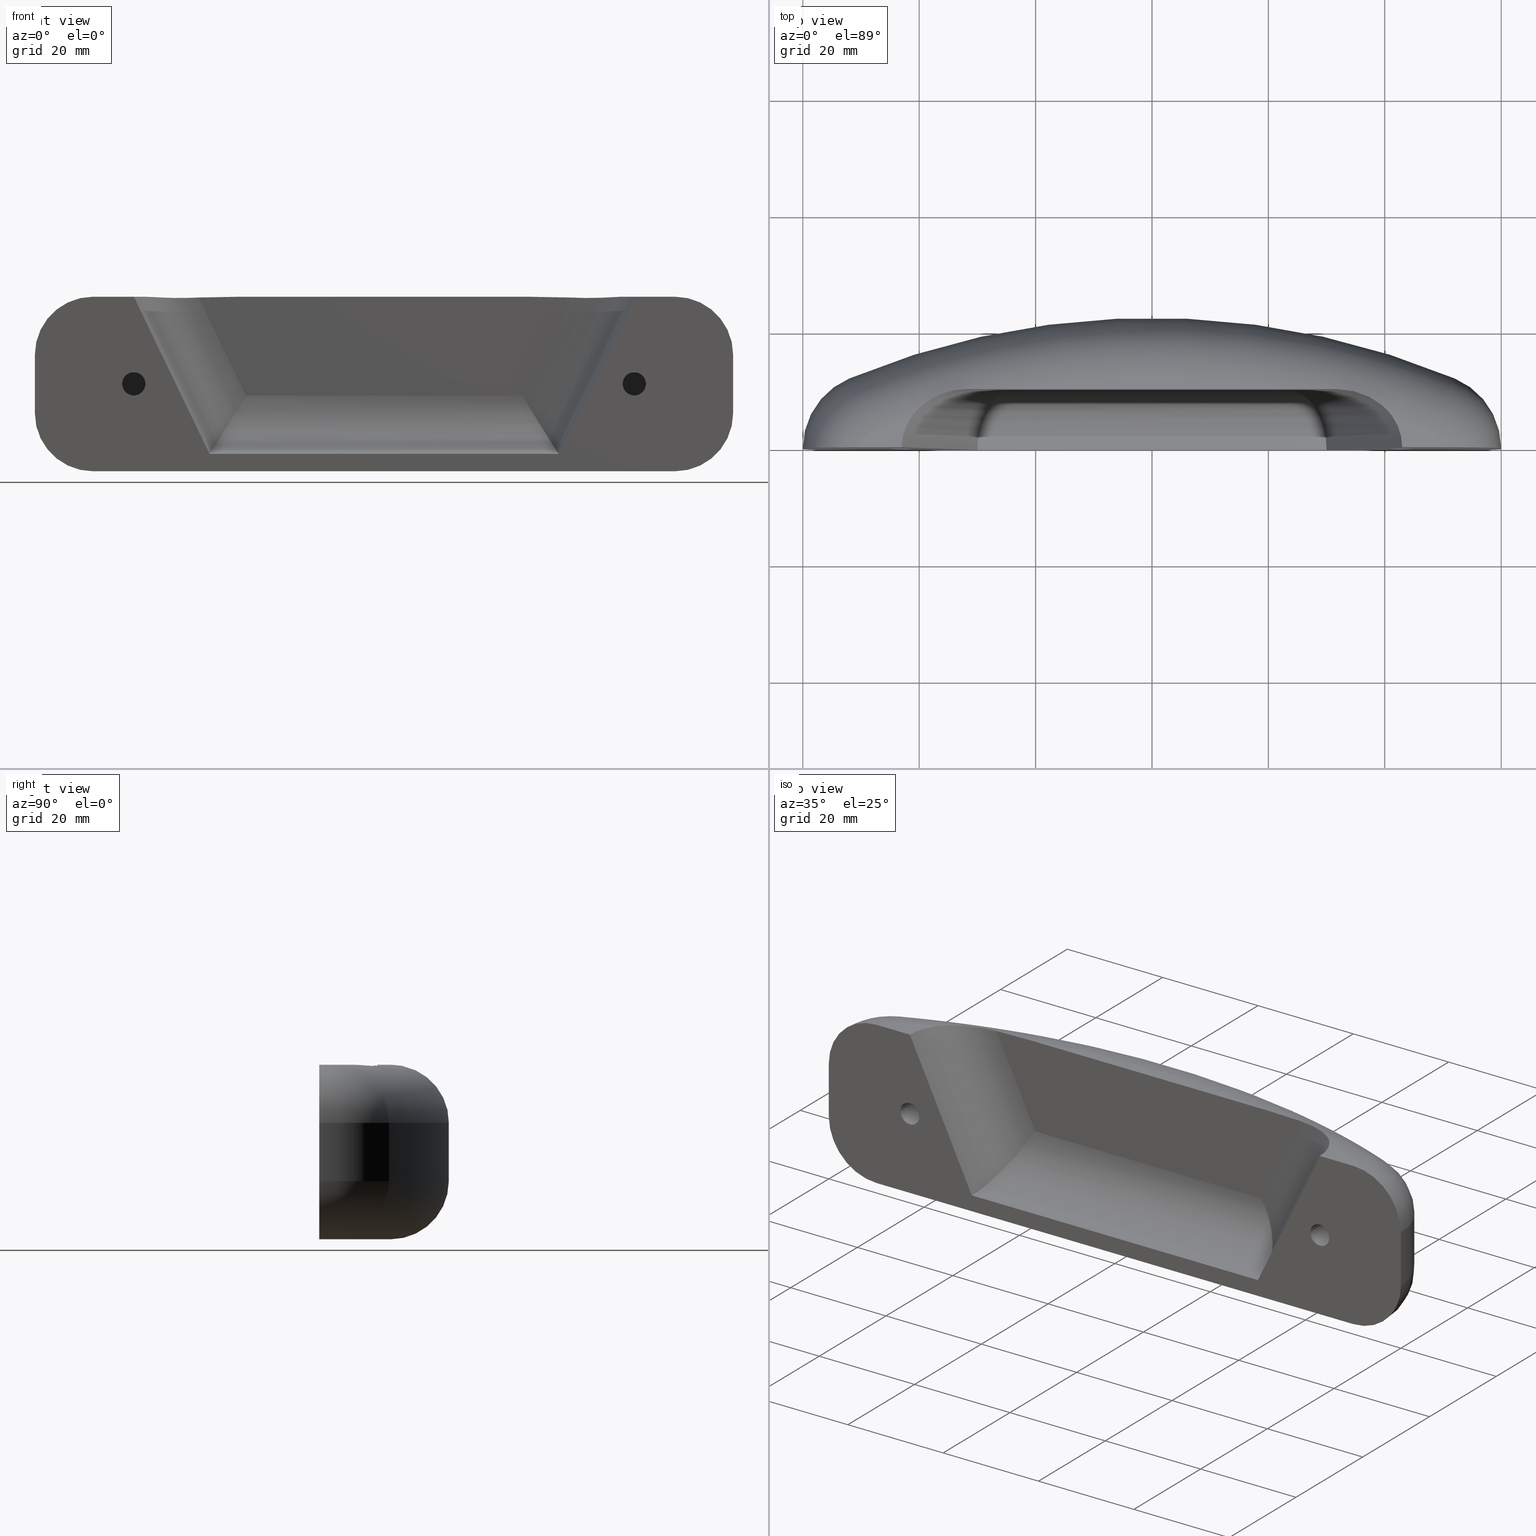
[diagram: canonical four-view strip — front | top / right | iso, engineering-drawing reading convention]
A machine part, canonical four-view strip (front | top / right | iso — engineering-drawing reading convention). The complete STEP part file that produces these views, byte-faithful:
ISO-10303-21;
HEADER;
FILE_DESCRIPTION (( 'STEP AP203' ),
    '1' );
FILE_NAME ('Puxador Modelo Eco.STEP',
    '2018-03-23T14:48:18',
    ( 'User2' ),
    ( '' ),
    'SwSTEP 2.0',
    'SolidWorks 2007',
    '' );
FILE_SCHEMA (( 'CONFIG_CONTROL_DESIGN' ));
ENDSEC;

DATA;
#1 = EDGE_CURVE ( 'NONE', #358, #377, #639, .T. ) ;
#2 = EDGE_CURVE ( 'NONE', #364, #355, #146, .T. ) ;
#3 = EDGE_CURVE ( 'NONE', #351, #361, #641, .T. ) ;
#4 = EDGE_CURVE ( 'NONE', #357, #353, #642, .T. ) ;
#5 = EDGE_CURVE ( 'NONE', #363, #351, #644, .T. ) ;
#6 = EDGE_CURVE ( 'NONE', #384, #375, #643, .T. ) ;
#7 = FACE_OUTER_BOUND ( 'NONE', #612, .T. ) ;
#8 = FACE_OUTER_BOUND ( 'NONE', #605, .T. ) ;
#9 = CYLINDRICAL_SURFACE ( 'NONE', #111, 2.000000000000001800 ) ;
#10 = FACE_OUTER_BOUND ( 'NONE', #609, .T. ) ;
#11 = CYLINDRICAL_SURFACE ( 'NONE', #86, 2.000000000000000000 ) ;
#12 = FACE_OUTER_BOUND ( 'NONE', #621, .T. ) ;
#13 = CYLINDRICAL_SURFACE ( 'NONE', #94, 13.00000000000001400 ) ;
#14 = FACE_OUTER_BOUND ( 'NONE', #616, .T. ) ;
#15 = FACE_OUTER_BOUND ( 'NONE', #620, .T. ) ;
#16 = CYLINDRICAL_SURFACE ( 'NONE', #138, 12.99999999999999800 ) ;
#17 = FACE_OUTER_BOUND ( 'NONE', #617, .T. ) ;
#18 = CYLINDRICAL_SURFACE ( 'NONE', #130, 135.2000000000006700 ) ;
#19 = FACE_OUTER_BOUND ( 'NONE', #614, .T. ) ;
#20 = CIRCLE ( 'NONE', #116, 125.2000000000006700 ) ;
#21 = LINE ( 'NONE', #206, #23 ) ;
#22 = CIRCLE ( 'NONE', #104, 125.2000000000006700 ) ;
#23 = VECTOR ( 'NONE', #207, 1000.000000000000000 ) ;
#24 = LINE ( 'NONE', #208, #25 ) ;
#25 = VECTOR ( 'NONE', #209, 1000.000000000000000 ) ;
#26 = LINE ( 'NONE', #210, #27 ) ;
#27 = VECTOR ( 'NONE', #211, 1000.000000000000000 ) ;
#28 = LINE ( 'NONE', #212, #29 ) ;
#29 = VECTOR ( 'NONE', #213, 1000.000000000000000 ) ;
#30 = LINE ( 'NONE', #214, #31 ) ;
#31 = VECTOR ( 'NONE', #215, 1000.000000000000000 ) ;
#32 = CIRCLE ( 'NONE', #137, 12.99999999999999800 ) ;
#33 = CIRCLE ( 'NONE', #143, 13.00000000000001400 ) ;
#34 = CIRCLE ( 'NONE', #99, 2.000000000000001800 ) ;
#35 = CIRCLE ( 'NONE', #107, 13.00000000000001400 ) ;
#36 = CARTESIAN_POINT ( 'NONE',  ( -17.00000000000000000, 9.999999999999998200, 30.00000000000000000 ) ) ;
#37 = VECTOR ( 'NONE', #469, 1000.000000000000000 ) ;
#38 = LINE ( 'NONE', #495, #40 ) ;
#39 = CIRCLE ( 'NONE', #122, 3.000000000000016400 ) ;
#40 = VECTOR ( 'NONE', #496, 999.9999999999998900 ) ;
#41 = LINE ( 'NONE', #500, #43 ) ;
#42 = CIRCLE ( 'NONE', #141, 10.00000000000000000 ) ;
#43 = VECTOR ( 'NONE', #501, 1000.000000000000000 ) ;
#44 = FACE_OUTER_BOUND ( 'NONE', #687, .T. ) ;
#45 = CYLINDRICAL_SURFACE ( 'NONE', #82, 10.00000000000000400 ) ;
#46 = FACE_OUTER_BOUND ( 'NONE', #689, .T. ) ;
#47 = FACE_OUTER_BOUND ( 'NONE', #684, .T. ) ;
#48 = CYLINDRICAL_SURFACE ( 'NONE', #73, 9.999999999999996400 ) ;
#49 = FACE_OUTER_BOUND ( 'NONE', #608, .T. ) ;
#50 = TOROIDAL_SURFACE ( 'NONE', #90, 3.000000000000014700, 10.00000000000000000 ) ;
#51 = FACE_OUTER_BOUND ( 'NONE', #611, .T. ) ;
#52 = TOROIDAL_SURFACE ( 'NONE', #77, 2.999999999999997300, 10.00000000000000000 ) ;
#53 = FACE_OUTER_BOUND ( 'NONE', #688, .T. ) ;
#54 = CYLINDRICAL_SURFACE ( 'NONE', #75, 10.00000000000000000 ) ;
#55 = FACE_OUTER_BOUND ( 'NONE', #610, .T. ) ;
#56 = TOROIDAL_SURFACE ( 'NONE', #102, 2.999999999999997300, 10.00000000000000000 ) ;
#57 = FACE_OUTER_BOUND ( 'NONE', #618, .T. ) ;
#58 = TOROIDAL_SURFACE ( 'NONE', #142, 125.2000000000006700, 10.00000000000000000 ) ;
#59 = FACE_OUTER_BOUND ( 'NONE', #686, .T. ) ;
#60 = FACE_OUTER_BOUND ( 'NONE', #613, .T. ) ;
#61 = TOROIDAL_SURFACE ( 'NONE', #139, 125.2000000000006700, 10.00000000000000000 ) ;
#62 = FACE_OUTER_BOUND ( 'NONE', #615, .T. ) ;
#63 = FACE_OUTER_BOUND ( 'NONE', #691, .T. ) ;
#64 = CYLINDRICAL_SURFACE ( 'NONE', #113, 2.000000000000001800 ) ;
#65 = FACE_OUTER_BOUND ( 'NONE', #638, .T. ) ;
#66 = TOROIDAL_SURFACE ( 'NONE', #96, 3.000000000000014700, 10.00000000000000000 ) ;
#67 = FACE_OUTER_BOUND ( 'NONE', #685, .T. ) ;
#68 = FACE_OUTER_BOUND ( 'NONE', #690, .T. ) ;
#69 = CYLINDRICAL_SURFACE ( 'NONE', #121, 2.000000000000000000 ) ;
#70 = FACE_BOUND ( 'NONE', #607, .T. ) ;
#71 = FACE_BOUND ( 'NONE', #606, .T. ) ;
#72 = FACE_OUTER_BOUND ( 'NONE', #619, .T. ) ;
#73 = AXIS2_PLACEMENT_3D ( 'NONE', #276, #277, #278 ) ;
#74 = CC_DESIGN_DATE_AND_TIME_ASSIGNMENT ( #787, #418, ( #85 ) ) ;
#75 = AXIS2_PLACEMENT_3D ( 'NONE', #285, #286, #287 ) ;
#76 = AXIS2_PLACEMENT_3D ( 'NONE', #177, #178, #185 ) ;
#77 = AXIS2_PLACEMENT_3D ( 'NONE', #282, #283, #284 ) ;
#78 = AXIS2_PLACEMENT_3D ( 'NONE', #302, #303, #304 ) ;
#79 = AXIS2_PLACEMENT_3D ( 'NONE', #261, #262, #263 ) ;
#80 = AXIS2_PLACEMENT_3D ( 'NONE', #253, #254, #255 ) ;
#81 = APPROVAL ( #419, 'UNSPECIFIED' ) ;
#82 = AXIS2_PLACEMENT_3D ( 'NONE', #269, #270, #271 ) ;
#83 = CC_DESIGN_APPROVAL ( #136, ( #85 ) ) ;
#84 = APPROVAL ( #426, 'UNSPECIFIED' ) ;
#85 = PRODUCT_DEFINITION ( 'UNKNOWN', '', #119, #194 ) ;
#86 = AXIS2_PLACEMENT_3D ( 'NONE', #329, #330, #331 ) ;
#87 = AXIS2_PLACEMENT_3D ( 'NONE', #179, #176, #175 ) ;
#88 = AXIS2_PLACEMENT_3D ( 'NONE', #728, #726, #736 ) ;
#89 = AXIS2_PLACEMENT_3D ( 'NONE', #232, #233, #234 ) ;
#90 = AXIS2_PLACEMENT_3D ( 'NONE', #279, #280, #281 ) ;
#91 = AXIS2_PLACEMENT_3D ( 'NONE', #395, #396, #397 ) ;
#92 = AXIS2_PLACEMENT_3D ( 'NONE', #462, #463, #464 ) ;
#93 = AXIS2_PLACEMENT_3D ( 'NONE', #235, #236, #237 ) ;
#94 = AXIS2_PLACEMENT_3D ( 'NONE', #332, #333, #334 ) ;
#95 = AXIS2_PLACEMENT_3D ( 'NONE', #197, #198, #199 ) ;
#96 = AXIS2_PLACEMENT_3D ( 'NONE', #308, #309, #310 ) ;
#97 = AXIS2_PLACEMENT_3D ( 'NONE', #245, #246, #247 ) ;
#98 = AXIS2_PLACEMENT_3D ( 'NONE', #248, #249, #250 ) ;
#99 = AXIS2_PLACEMENT_3D ( 'NONE', #222, #223, #224 ) ;
#100 = AXIS2_PLACEMENT_3D ( 'NONE', #323, #324, #325 ) ;
#101 = AXIS2_PLACEMENT_3D ( 'NONE', #258, #259, #260 ) ;
#102 = AXIS2_PLACEMENT_3D ( 'NONE', #288, #289, #290 ) ;
#103 = AXIS2_PLACEMENT_3D ( 'NONE', #266, #267, #394 ) ;
#104 = AXIS2_PLACEMENT_3D ( 'NONE', #203, #204, #205 ) ;
#105 = AXIS2_PLACEMENT_3D ( 'NONE', #174, #171, #181 ) ;
#106 = AXIS2_PLACEMENT_3D ( 'NONE', #398, #399, #400 ) ;
#107 = AXIS2_PLACEMENT_3D ( 'NONE', #229, #230, #231 ) ;
#108 = CC_DESIGN_PERSON_AND_ORGANIZATION_ASSIGNMENT ( #775, #412, ( #191 ) ) ;
#109 = AXIS2_PLACEMENT_3D ( 'NONE', #273, #274, #275 ) ;
#110 = AXIS2_PLACEMENT_3D ( 'NONE', #242, #243, #244 ) ;
#111 = AXIS2_PLACEMENT_3D ( 'NONE', #326, #327, #328 ) ;
#112 = PRODUCT_RELATED_PRODUCT_CATEGORY ( 'detail', '', ( #191 ) ) ;
#113 = AXIS2_PLACEMENT_3D ( 'NONE', #305, #306, #307 ) ;
#114 = AXIS2_PLACEMENT_3D ( 'NONE', #168, #184, #173 ) ;
#115 = AXIS2_PLACEMENT_3D ( 'NONE', #465, #466, #467 ) ;
#116 = AXIS2_PLACEMENT_3D ( 'NONE', #200, #201, #202 ) ;
#117 = AXIS2_PLACEMENT_3D ( 'NONE', #459, #460, #461 ) ;
#118 = AXIS2_PLACEMENT_3D ( 'NONE', #456, #457, #458 ) ;
#119 = PRODUCT_DEFINITION_FORMATION_WITH_SPECIFIED_SOURCE ( 'ANY', '', #191, .NOT_KNOWN. ) ;
#120 = AXIS2_PLACEMENT_3D ( 'NONE', #312, #313, #314 ) ;
#121 = AXIS2_PLACEMENT_3D ( 'NONE', #315, #316, #317 ) ;
#122 = AXIS2_PLACEMENT_3D ( 'NONE', #470, #471, #472 ) ;
#123 = CC_DESIGN_APPROVAL ( #84, ( #797 ) ) ;
#124 = CC_DESIGN_DATE_AND_TIME_ASSIGNMENT ( #802, #425, ( #797 ) ) ;
#125 = CC_DESIGN_PERSON_AND_ORGANIZATION_ASSIGNMENT ( #795, #421, ( #119 ) ) ;
#126 = AXIS2_PLACEMENT_3D ( 'NONE', #336, #337, #338 ) ;
#127 = AXIS2_PLACEMENT_3D ( 'NONE', #406, #407, #408 ) ;
#128 = AXIS2_PLACEMENT_3D ( 'NONE', #733, #734, #729 ) ;
#129 = CC_DESIGN_PERSON_AND_ORGANIZATION_ASSIGNMENT ( #783, #417, ( #85 ) ) ;
#130 = AXIS2_PLACEMENT_3D ( 'NONE', #342, #343, #344 ) ;
#131 = CC_DESIGN_SECURITY_CLASSIFICATION ( #797, ( #119 ) ) ;
#132 = CC_DESIGN_APPROVAL ( #81, ( #119 ) ) ;
#133 = AXIS2_PLACEMENT_3D ( 'NONE', #186, #169, #170 ) ;
#134 = CC_DESIGN_PERSON_AND_ORGANIZATION_ASSIGNMENT ( #796, #422, ( #119 ) ) ;
#135 = CC_DESIGN_PERSON_AND_ORGANIZATION_ASSIGNMENT ( #798, #424, ( #797 ) ) ;
#136 = APPROVAL ( #415, 'UNSPECIFIED' ) ;
#137 = AXIS2_PLACEMENT_3D ( 'NONE', #216, #217, #218 ) ;
#138 = AXIS2_PLACEMENT_3D ( 'NONE', #339, #340, #341 ) ;
#139 = AXIS2_PLACEMENT_3D ( 'NONE', #298, #299, #300 ) ;
#140 = AXIS2_PLACEMENT_3D ( 'NONE', #319, #320, #321 ) ;
#141 = AXIS2_PLACEMENT_3D ( 'NONE', #497, #498, #499 ) ;
#142 = AXIS2_PLACEMENT_3D ( 'NONE', #291, #292, #293 ) ;
#143 = AXIS2_PLACEMENT_3D ( 'NONE', #219, #220, #221 ) ;
#144 = AXIS2_PLACEMENT_3D ( 'NONE', #295, #296, #297 ) ;
#145 =( BOUNDED_CURVE ( )  B_SPLINE_CURVE ( 3, ( #452, #453, #454, #455 ),
 .UNSPECIFIED., .F., .T. ) 
 B_SPLINE_CURVE_WITH_KNOTS ( ( 4, 4 ),
 ( 0.0000000000000000000, 1.570796326794896600 ),
 .UNSPECIFIED. ) 
 CURVE ( )  GEOMETRIC_REPRESENTATION_ITEM ( )  RATIONAL_B_SPLINE_CURVE ( ( 1.000000000000000000, 0.8047378541243649400, 0.8047378541243649400, 1.000000000000000000 ) ) 
 REPRESENTATION_ITEM ( '' )  );
#146 =( BOUNDED_CURVE ( )  B_SPLINE_CURVE ( 3, ( #383, #374, #376, #378 ),
 .UNSPECIFIED., .F., .T. ) 
 B_SPLINE_CURVE_WITH_KNOTS ( ( 4, 4 ),
 ( 3.141592653589793100, 3.713932221314978600 ),
 .UNSPECIFIED. ) 
 CURVE ( )  GEOMETRIC_REPRESENTATION_ITEM ( )  RATIONAL_B_SPLINE_CURVE ( ( 1.000000000000000000, 0.9728880684569010100, 0.9728880684569010100, 1.000000000000000000 ) ) 
 REPRESENTATION_ITEM ( '' )  );
#147 =( BOUNDED_CURVE ( )  B_SPLINE_CURVE ( 3, ( #731, #735, #765, #766 ),
 .UNSPECIFIED., .F., .T. ) 
 B_SPLINE_CURVE_WITH_KNOTS ( ( 4, 4 ),
 ( 1.570796326794896800, 3.141592653589793100 ),
 .UNSPECIFIED. ) 
 CURVE ( )  GEOMETRIC_REPRESENTATION_ITEM ( )  RATIONAL_B_SPLINE_CURVE ( ( 1.000000000000000000, 0.8047378541243650500, 0.8047378541243650500, 1.000000000000000000 ) ) 
 REPRESENTATION_ITEM ( '' )  );
#148 =( BOUNDED_CURVE ( )  B_SPLINE_CURVE ( 3, ( #225, #226, #227, #228 ),
 .UNSPECIFIED., .F., .T. ) 
 B_SPLINE_CURVE_WITH_KNOTS ( ( 4, 4 ),
 ( 5.710845739454399900, 6.283185307179586200 ),
 .UNSPECIFIED. ) 
 CURVE ( )  GEOMETRIC_REPRESENTATION_ITEM ( )  RATIONAL_B_SPLINE_CURVE ( ( 1.000000000000000000, 0.9728880684569010100, 0.9728880684569010100, 1.000000000000000000 ) ) 
 REPRESENTATION_ITEM ( '' )  );
#149 = EDGE_CURVE ( 'NONE', #368, #349, #646, .T. ) ;
#150 = EDGE_CURVE ( 'NONE', #360, #352, #648, .T. ) ;
#151 = EDGE_CURVE ( 'NONE', #373, #379, #544, .T. ) ;
#152 = EDGE_CURVE ( 'NONE', #373, #385, #647, .T. ) ;
#153 = EDGE_CURVE ( 'NONE', #384, #356, #650, .T. ) ;
#154 = EDGE_CURVE ( 'NONE', #384, #365, #651, .T. ) ;
#155 = EDGE_CURVE ( 'NONE', #385, #347, #147, .T. ) ;
#156 = EDGE_CURVE ( 'NONE', #350, #386, #543, .T. ) ;
#157 = EDGE_CURVE ( 'NONE', #350, #379, #652, .T. ) ;
#158 = EDGE_CURVE ( 'NONE', #386, #361, #542, .T. ) ;
#159 = EDGE_CURVE ( 'NONE', #355, #373, #541, .T. ) ;
#160 = EDGE_CURVE ( 'NONE', #348, #381, #145, .T. ) ;
#161 = EDGE_CURVE ( 'NONE', #354, #380, #654, .T. ) ;
#162 = EDGE_CURVE ( 'NONE', #380, #375, #655, .T. ) ;
#163 = EDGE_CURVE ( 'NONE', #356, #351, #656, .T. ) ;
#164 = EDGE_CURVE ( 'NONE', #349, #375, #658, .T. ) ;
#165 = EDGE_CURVE ( 'NONE', #381, #386, #657, .T. ) ;
#166 = EDGE_CURVE ( 'NONE', #354, #367, #39, .T. ) ;
#167 = ADVANCED_BREP_SHAPE_REPRESENTATION ( 'Puxador Modelo Eco', ( #539, #127 ), #772 ) ;
#168 = CARTESIAN_POINT ( 'NONE',  ( -13.00000000000001800, -2.081668171172168500E-014, 30.00000000000000000 ) ) ;
#169 = DIRECTION ( 'NONE',  ( 1.224646799147353500E-016, -1.000000000000000000, 0.0000000000000000000 ) ) ;
#170 = DIRECTION ( 'NONE',  ( 1.000000000000000000, 0.0000000000000000000, 0.0000000000000000000 ) ) ;
#171 = DIRECTION ( 'NONE',  ( -0.0000000000000000000, -0.0000000000000000000, -1.000000000000000000 ) ) ;
#172 = CARTESIAN_POINT ( 'NONE',  ( -111.9999999999999900, 11.99999999999998800, 30.00000000000000000 ) ) ;
#173 = DIRECTION ( 'NONE',  ( -1.000000000000000000, -8.881784197001252300E-016, 0.0000000000000000000 ) ) ;
#174 = CARTESIAN_POINT ( 'NONE',  ( -107.0000000000000000, -1.310372075087668100E-014, 0.0000000000000000000 ) ) ;
#175 = DIRECTION ( 'NONE',  ( -1.000000000000000000, -1.224646799147354200E-016, 0.0000000000000000000 ) ) ;
#176 = DIRECTION ( 'NONE',  ( 1.224646799147353500E-016, -1.000000000000000000, -0.0000000000000000000 ) ) ;
#177 = CARTESIAN_POINT ( 'NONE',  ( -60.00000000000000000, -112.8000000000007600, 30.00000000000000000 ) ) ;
#178 = DIRECTION ( 'NONE',  ( 0.0000000000000000000, 0.0000000000000000000, 1.000000000000000000 ) ) ;
#179 = CARTESIAN_POINT ( 'NONE',  ( -110.0000000000000000, -1.347111479062088700E-014, 19.99999999999999600 ) ) ;
#180 = CARTESIAN_POINT ( 'NONE',  ( -90.59727264926419800, 9.999999999999989300, 29.91362001034588400 ) ) ;
#181 = DIRECTION ( 'NONE',  ( -1.000000000000000000, 0.0000000000000000000, 0.0000000000000000000 ) ) ;
#182 = DIRECTION ( 'NONE',  ( -0.0000000000000000000, -0.0000000000000000000, -1.000000000000000000 ) ) ;
#183 = CARTESIAN_POINT ( 'NONE',  ( -91.83449836807743300, 9.999999999999989300, 29.86137978565571800 ) ) ;
#184 = DIRECTION ( 'NONE',  ( 0.0000000000000000000, 0.0000000000000000000, 1.000000000000000000 ) ) ;
#185 = DIRECTION ( 'NONE',  ( -1.000000000000000000, -1.596167287799737300E-014, 0.0000000000000000000 ) ) ;
#186 = CARTESIAN_POINT ( 'NONE',  ( -17.00000000000000000, 9.999999999999998200, 15.00000000000000000 ) ) ;
#187 = CARTESIAN_POINT ( 'NONE',  ( -89.35857953880814400, 9.999999999999987600, 29.94807394158818100 ) ) ;
#188 = ORIENTED_EDGE ( 'NONE', *, *, #161, .T. ) ;
#189 = ORIENTED_EDGE ( 'NONE', *, *, #770, .F. ) ;
#190 = ORIENTED_EDGE ( 'NONE', *, *, #746, .F. ) ;
#191 = PRODUCT ( 'Puxador Modelo Eco', 'Puxador Modelo Eco', '', ( #411 ) ) ;
#192 = PERSON ( 'UNSPECIFIED', 'UNSPECIFIED', 'UNSPECIFIED', ('UNSPECIFIED'), ('UNSPECIFIED'), ('UNSPECIFIED') ) ;
#193 = ORIENTED_EDGE ( 'NONE', *, *, #758, .F. ) ;
#194 = DESIGN_CONTEXT ( 'detailed design', #413, 'design' ) ;
#195 = PRODUCT_DEFINITION_SHAPE ( 'NONE', 'NONE',  #85 ) ;
#196 = PLANE ( 'NONE',  #95 ) ;
#197 = CARTESIAN_POINT ( 'NONE',  ( -13.00000000000001800, -2.081668171172168500E-014, 30.00000000000000000 ) ) ;
#198 = DIRECTION ( 'NONE',  ( -0.0000000000000000000, 0.0000000000000000000, -1.000000000000000000 ) ) ;
#199 = DIRECTION ( 'NONE',  ( -1.000000000000000000, 0.0000000000000000000, 0.0000000000000000000 ) ) ;
#200 = CARTESIAN_POINT ( 'NONE',  ( -60.00000000000000000, -112.8000000000007600, 30.00000000000000000 ) ) ;
#201 = DIRECTION ( 'NONE',  ( 0.0000000000000000000, 0.0000000000000000000, 1.000000000000000000 ) ) ;
#202 = DIRECTION ( 'NONE',  ( -1.000000000000000000, -2.660278812999562100E-015, 0.0000000000000000000 ) ) ;
#203 = CARTESIAN_POINT ( 'NONE',  ( -60.00000000000000000, -112.8000000000007600, 30.00000000000000000 ) ) ;
#204 = DIRECTION ( 'NONE',  ( 0.0000000000000000000, 0.0000000000000000000, 1.000000000000000000 ) ) ;
#205 = DIRECTION ( 'NONE',  ( -1.000000000000000000, 0.0000000000000000000, 0.0000000000000000000 ) ) ;
#206 = CARTESIAN_POINT ( 'NONE',  ( 0.0000000000000000000, 0.0000000000000000000, 30.00000000000000000 ) ) ;
#207 = DIRECTION ( 'NONE',  ( 1.000000000000000000, 1.224646799147353500E-016, -0.0000000000000000000 ) ) ;
#208 = CARTESIAN_POINT ( 'NONE',  ( -15.00000000000000200, 9.999999999999998200, 15.00000000000000000 ) ) ;
#209 = DIRECTION ( 'NONE',  ( 1.224646799147353500E-016, -1.000000000000000000, -0.0000000000000000000 ) ) ;
#210 = CARTESIAN_POINT ( 'NONE',  ( -19.00000000000000000, 9.999999999999998200, 15.00000000000000000 ) ) ;
#211 = DIRECTION ( 'NONE',  ( 1.224646799147353500E-016, -1.000000000000000000, -0.0000000000000000000 ) ) ;
#212 = CARTESIAN_POINT ( 'NONE',  ( 0.0000000000000000000, 0.0000000000000000000, 30.00000000000000000 ) ) ;
#213 = DIRECTION ( 'NONE',  ( -0.0000000000000000000, -0.0000000000000000000, -1.000000000000000000 ) ) ;
#214 = CARTESIAN_POINT ( 'NONE',  ( 0.0000000000000000000, 0.0000000000000000000, 0.0000000000000000000 ) ) ;
#215 = DIRECTION ( 'NONE',  ( 1.000000000000000000, 1.224646799147353500E-016, -0.0000000000000000000 ) ) ;
#216 = CARTESIAN_POINT ( 'NONE',  ( -107.0000000000000000, -1.310372075087668100E-014, 10.00000000000000200 ) ) ;
#217 = DIRECTION ( 'NONE',  ( 0.0000000000000000000, 0.0000000000000000000, 1.000000000000000000 ) ) ;
#218 = DIRECTION ( 'NONE',  ( -1.000000000000000000, 8.881784197001252300E-016, 0.0000000000000000000 ) ) ;
#219 = CARTESIAN_POINT ( 'NONE',  ( -13.00000000000001800, -2.081668171172168500E-014, 10.00000000000000200 ) ) ;
#220 = DIRECTION ( 'NONE',  ( 0.0000000000000000000, 0.0000000000000000000, 1.000000000000000000 ) ) ;
#221 = DIRECTION ( 'NONE',  ( -1.000000000000000000, 0.0000000000000000000, 0.0000000000000000000 ) ) ;
#222 = CARTESIAN_POINT ( 'NONE',  ( -103.0000000000000000, -1.261386203121773900E-014, 15.00000000000000000 ) ) ;
#223 = DIRECTION ( 'NONE',  ( 1.224646799147353500E-016, -1.000000000000000000, 0.0000000000000000000 ) ) ;
#224 = DIRECTION ( 'NONE',  ( 1.000000000000000000, 1.224646799147349500E-016, 0.0000000000000000000 ) ) ;
#225 = CARTESIAN_POINT ( 'NONE',  ( -18.76874071229203600, 5.416002544282427800, 30.00000000000000000 ) ) ;
#226 = CARTESIAN_POINT ( 'NONE',  ( -17.60601034851399400, 3.789952825565746000, 29.99999999999999600 ) ) ;
#227 = CARTESIAN_POINT ( 'NONE',  ( -16.99999999999998200, 1.934308543391619400, 29.99999999999999600 ) ) ;
#228 = CARTESIAN_POINT ( 'NONE',  ( -17.00000000000000000, -2.081899558550500700E-015, 30.00000000000000000 ) ) ;
#229 = CARTESIAN_POINT ( 'NONE',  ( -13.00000000000001800, -2.081668171172168500E-014, 19.99999999999999600 ) ) ;
#230 = DIRECTION ( 'NONE',  ( -0.0000000000000000000, -0.0000000000000000000, -1.000000000000000000 ) ) ;
#231 = DIRECTION ( 'NONE',  ( -1.000000000000000000, 0.0000000000000000000, 0.0000000000000000000 ) ) ;
#232 = CARTESIAN_POINT ( 'NONE',  ( -17.00000000000000000, -2.081899558550500700E-015, 15.00000000000000000 ) ) ;
#233 = DIRECTION ( 'NONE',  ( 1.224646799147353500E-016, -1.000000000000000000, 0.0000000000000000000 ) ) ;
#234 = DIRECTION ( 'NONE',  ( 1.000000000000000000, 1.224646799147352500E-016, 0.0000000000000000000 ) ) ;
#235 = CARTESIAN_POINT ( 'NONE',  ( -110.0000000000000000, -1.347111479062088700E-014, 10.00000000000000200 ) ) ;
#236 = DIRECTION ( 'NONE',  ( 1.224646799147353500E-016, -1.000000000000000000, -0.0000000000000000000 ) ) ;
#237 = DIRECTION ( 'NONE',  ( -1.000000000000000000, -1.224646799147354200E-016, 0.0000000000000000000 ) ) ;
#238 = CARTESIAN_POINT ( 'NONE',  ( -105.0000000000000000, 9.999999999999987600, 15.00000000000000000 ) ) ;
#239 = DIRECTION ( 'NONE',  ( 1.224646799147353500E-016, -1.000000000000000000, -0.0000000000000000000 ) ) ;
#240 = CARTESIAN_POINT ( 'NONE',  ( 0.0000000000000000000, 0.0000000000000000000, 30.00000000000000000 ) ) ;
#241 = DIRECTION ( 'NONE',  ( 1.000000000000000000, 1.224646799147353500E-016, -0.0000000000000000000 ) ) ;
#242 = CARTESIAN_POINT ( 'NONE',  ( -103.0000000000000000, -1.261386203121773900E-014, 15.00000000000000000 ) ) ;
#243 = DIRECTION ( 'NONE',  ( 1.224646799147353500E-016, -1.000000000000000000, 0.0000000000000000000 ) ) ;
#244 = DIRECTION ( 'NONE',  ( 1.000000000000000000, 1.224646799147349500E-016, 0.0000000000000000000 ) ) ;
#245 = CARTESIAN_POINT ( 'NONE',  ( -17.00000000000000000, -2.081899558550500700E-015, 15.00000000000000000 ) ) ;
#246 = DIRECTION ( 'NONE',  ( 1.224646799147353500E-016, -1.000000000000000000, 0.0000000000000000000 ) ) ;
#247 = DIRECTION ( 'NONE',  ( 1.000000000000000000, 1.224646799147352500E-016, 0.0000000000000000000 ) ) ;
#248 = CARTESIAN_POINT ( 'NONE',  ( -107.0000000000000000, -1.310372075087668100E-014, 19.99999999999999600 ) ) ;
#249 = DIRECTION ( 'NONE',  ( -0.0000000000000000000, -0.0000000000000000000, -1.000000000000000000 ) ) ;
#250 = DIRECTION ( 'NONE',  ( -1.000000000000000000, 0.0000000000000000000, 0.0000000000000000000 ) ) ;
#251 = CARTESIAN_POINT ( 'NONE',  ( -90.00000000000000000, -1.102182119232618100E-014, 2.999999999999999100 ) ) ;
#252 = DIRECTION ( 'NONE',  ( 1.000000000000000000, 1.224646799147353700E-016, 0.0000000000000000000 ) ) ;
#253 = CARTESIAN_POINT ( 'NONE',  ( -10.00000000000000400, -2.044928767197747700E-014, 10.00000000000000200 ) ) ;
#254 = DIRECTION ( 'NONE',  ( 1.224646799147353500E-016, -1.000000000000000000, -0.0000000000000000000 ) ) ;
#255 = DIRECTION ( 'NONE',  ( -1.000000000000000000, -1.224646799147353700E-016, 0.0000000000000000000 ) ) ;
#256 = CARTESIAN_POINT ( 'NONE',  ( -30.00000000000000000, -3.673940397442060000E-015, 2.999999999999999100 ) ) ;
#257 = DIRECTION ( 'NONE',  ( 0.4338156187728998700, 5.312709089503603000E-017, 0.9010016697590997900 ) ) ;
#258 = CARTESIAN_POINT ( 'NONE',  ( -107.0000000000000000, -1.310372075087668100E-014, 30.00000000000000000 ) ) ;
#259 = DIRECTION ( 'NONE',  ( 0.0000000000000000000, 0.0000000000000000000, 1.000000000000000000 ) ) ;
#260 = DIRECTION ( 'NONE',  ( -1.000000000000000000, -8.881784197001231600E-016, 0.0000000000000000000 ) ) ;
#261 = CARTESIAN_POINT ( 'NONE',  ( -103.0000000000000000, 9.999999999999987600, 15.00000000000000000 ) ) ;
#262 = DIRECTION ( 'NONE',  ( 1.224646799147353500E-016, -1.000000000000000000, 0.0000000000000000000 ) ) ;
#263 = DIRECTION ( 'NONE',  ( 1.000000000000000000, 0.0000000000000000000, 0.0000000000000000000 ) ) ;
#264 = CARTESIAN_POINT ( 'NONE',  ( -8.000000000000000000, 11.99999999999998200, 30.00000000000000000 ) ) ;
#265 = DIRECTION ( 'NONE',  ( -0.0000000000000000000, -0.0000000000000000000, -1.000000000000000000 ) ) ;
#266 = CARTESIAN_POINT ( 'NONE',  ( -17.00000000000000000, 9.999999999999998200, 15.00000000000000000 ) ) ;
#267 = DIRECTION ( 'NONE',  ( 1.224646799147353500E-016, -1.000000000000000000, 0.0000000000000000000 ) ) ;
#268 = CARTESIAN_POINT ( 'NONE',  ( -19.00000000000000000, -2.326828918379971400E-015, 15.00000000000000000 ) ) ;
#269 = CARTESIAN_POINT ( 'NONE',  ( -42.19487193144399100, -4.696583785747452400E-015, 0.7234568558804401700 ) ) ;
#270 = DIRECTION ( 'NONE',  ( 0.4338156187728998700, 5.312709089503605500E-017, 0.9010016697590999000 ) ) ;
#271 = DIRECTION ( 'NONE',  ( 0.9010016697590999000, 0.0000000000000000000, -0.4338156187728997600 ) ) ;
#272 = PLANE ( 'NONE',  #109 ) ;
#273 = CARTESIAN_POINT ( 'NONE',  ( -17.00000000000000000, 9.999999999999998200, 15.00000000000000000 ) ) ;
#274 = DIRECTION ( 'NONE',  ( 1.224646799147353500E-016, -1.000000000000000000, 0.0000000000000000000 ) ) ;
#275 = DIRECTION ( 'NONE',  ( 1.000000000000000000, 1.224646799147353500E-016, 0.0000000000000000000 ) ) ;
#276 = CARTESIAN_POINT ( 'NONE',  ( -93.98998330240898700, -1.103965552094074800E-014, 34.33815618772897700 ) ) ;
#277 = DIRECTION ( 'NONE',  ( 0.4338156187728998700, 5.312709089503601800E-017, -0.9010016697590999000 ) ) ;
#278 = DIRECTION ( 'NONE',  ( -0.9010016697590997900, 0.0000000000000000000, -0.4338156187728999800 ) ) ;
#279 = CARTESIAN_POINT ( 'NONE',  ( -13.00000000000001800, -2.081668171172168500E-014, 10.00000000000000200 ) ) ;
#280 = DIRECTION ( 'NONE',  ( -0.0000000000000000000, -0.0000000000000000000, -1.000000000000000000 ) ) ;
#281 = DIRECTION ( 'NONE',  ( -1.000000000000000000, 0.0000000000000000000, 0.0000000000000000000 ) ) ;
#282 = CARTESIAN_POINT ( 'NONE',  ( -107.0000000000000000, -1.310372075087668100E-014, 19.99999999999999600 ) ) ;
#283 = DIRECTION ( 'NONE',  ( -0.0000000000000000000, -0.0000000000000000000, -1.000000000000000000 ) ) ;
#284 = DIRECTION ( 'NONE',  ( -1.000000000000000000, 0.0000000000000000000, 0.0000000000000000000 ) ) ;
#285 = CARTESIAN_POINT ( 'NONE',  ( -102.9999999999999900, -1.214306433183765000E-014, 13.00000000000000200 ) ) ;
#286 = DIRECTION ( 'NONE',  ( 1.000000000000000000, 1.224646799147353500E-016, 0.0000000000000000000 ) ) ;
#287 = DIRECTION ( 'NONE',  ( 0.0000000000000000000, 1.000000000000000000, 0.0000000000000000000 ) ) ;
#288 = CARTESIAN_POINT ( 'NONE',  ( -107.0000000000000000, -1.310372075087668100E-014, 10.00000000000000200 ) ) ;
#289 = DIRECTION ( 'NONE',  ( -0.0000000000000000000, -0.0000000000000000000, -1.000000000000000000 ) ) ;
#290 = DIRECTION ( 'NONE',  ( -1.000000000000000000, 0.0000000000000000000, 0.0000000000000000000 ) ) ;
#291 = CARTESIAN_POINT ( 'NONE',  ( -60.00000000000000000, -112.8000000000007600, 10.00000000000000200 ) ) ;
#292 = DIRECTION ( 'NONE',  ( -0.0000000000000000000, -0.0000000000000000000, -1.000000000000000000 ) ) ;
#293 = DIRECTION ( 'NONE',  ( -1.000000000000000000, 0.0000000000000000000, 0.0000000000000000000 ) ) ;
#294 = PLANE ( 'NONE',  #144 ) ;
#295 = CARTESIAN_POINT ( 'NONE',  ( -103.0000000000000000, 9.999999999999987600, 15.00000000000000000 ) ) ;
#296 = DIRECTION ( 'NONE',  ( 1.224646799147353500E-016, -1.000000000000000000, 0.0000000000000000000 ) ) ;
#297 = DIRECTION ( 'NONE',  ( 1.000000000000000000, 1.224646799147353500E-016, 0.0000000000000000000 ) ) ;
#298 = CARTESIAN_POINT ( 'NONE',  ( -60.00000000000000000, -112.8000000000007600, 19.99999999999999600 ) ) ;
#299 = DIRECTION ( 'NONE',  ( -0.0000000000000000000, -0.0000000000000000000, -1.000000000000000000 ) ) ;
#300 = DIRECTION ( 'NONE',  ( -1.000000000000000000, 0.0000000000000000000, 0.0000000000000000000 ) ) ;
#301 = PLANE ( 'NONE',  #78 ) ;
#302 = CARTESIAN_POINT ( 'NONE',  ( -13.00000000000001800, -2.081668171172168500E-014, 0.0000000000000000000 ) ) ;
#303 = DIRECTION ( 'NONE',  ( -0.0000000000000000000, 0.0000000000000000000, -1.000000000000000000 ) ) ;
#304 = DIRECTION ( 'NONE',  ( -1.000000000000000000, 0.0000000000000000000, 0.0000000000000000000 ) ) ;
#305 = CARTESIAN_POINT ( 'NONE',  ( -103.0000000000000000, 9.999999999999987600, 15.00000000000000000 ) ) ;
#306 = DIRECTION ( 'NONE',  ( 1.224646799147353500E-016, -1.000000000000000000, -0.0000000000000000000 ) ) ;
#307 = DIRECTION ( 'NONE',  ( 1.000000000000000000, 0.0000000000000000000, 0.0000000000000000000 ) ) ;
#308 = CARTESIAN_POINT ( 'NONE',  ( -13.00000000000001800, -2.081668171172168500E-014, 19.99999999999999600 ) ) ;
#309 = DIRECTION ( 'NONE',  ( -0.0000000000000000000, -0.0000000000000000000, -1.000000000000000000 ) ) ;
#310 = DIRECTION ( 'NONE',  ( -1.000000000000000000, 0.0000000000000000000, 0.0000000000000000000 ) ) ;
#311 = PLANE ( 'NONE',  #120 ) ;
#312 = CARTESIAN_POINT ( 'NONE',  ( -102.9999999999999900, 9.999999999999987600, 29.99999999999998200 ) ) ;
#313 = DIRECTION ( 'NONE',  ( 1.224646799147353500E-016, -1.000000000000000000, 2.052041420862275400E-032 ) ) ;
#314 = DIRECTION ( 'NONE',  ( 1.000000000000000000, 1.224646799147353500E-016, 0.0000000000000000000 ) ) ;
#315 = CARTESIAN_POINT ( 'NONE',  ( -17.00000000000000000, 9.999999999999998200, 15.00000000000000000 ) ) ;
#316 = DIRECTION ( 'NONE',  ( 1.224646799147353500E-016, -1.000000000000000000, -0.0000000000000000000 ) ) ;
#317 = DIRECTION ( 'NONE',  ( 1.000000000000000000, 0.0000000000000000000, 0.0000000000000000000 ) ) ;
#318 = PLANE ( 'NONE',  #140 ) ;
#319 = CARTESIAN_POINT ( 'NONE',  ( 0.0000000000000000000, 0.0000000000000000000, 30.00000000000000000 ) ) ;
#320 = DIRECTION ( 'NONE',  ( -1.224646799147353500E-016, 1.000000000000000000, 0.0000000000000000000 ) ) ;
#321 = DIRECTION ( 'NONE',  ( -1.000000000000000000, -1.224646799147353500E-016, 0.0000000000000000000 ) ) ;
#322 = PLANE ( 'NONE',  #100 ) ;
#323 = CARTESIAN_POINT ( 'NONE',  ( -13.00000000000001800, -2.081668171172168500E-014, 30.00000000000000000 ) ) ;
#324 = DIRECTION ( 'NONE',  ( -0.0000000000000000000, 0.0000000000000000000, -1.000000000000000000 ) ) ;
#325 = DIRECTION ( 'NONE',  ( -1.000000000000000000, 0.0000000000000000000, 0.0000000000000000000 ) ) ;
#326 = CARTESIAN_POINT ( 'NONE',  ( -103.0000000000000000, 9.999999999999987600, 15.00000000000000000 ) ) ;
#327 = DIRECTION ( 'NONE',  ( 1.224646799147353500E-016, -1.000000000000000000, -0.0000000000000000000 ) ) ;
#328 = DIRECTION ( 'NONE',  ( 1.000000000000000000, 0.0000000000000000000, 0.0000000000000000000 ) ) ;
#329 = CARTESIAN_POINT ( 'NONE',  ( -17.00000000000000000, 9.999999999999998200, 15.00000000000000000 ) ) ;
#330 = DIRECTION ( 'NONE',  ( 1.224646799147353500E-016, -1.000000000000000000, -0.0000000000000000000 ) ) ;
#331 = DIRECTION ( 'NONE',  ( 1.000000000000000000, 0.0000000000000000000, 0.0000000000000000000 ) ) ;
#332 = CARTESIAN_POINT ( 'NONE',  ( -13.00000000000001800, -2.081668171172168500E-014, 30.00000000000000000 ) ) ;
#333 = DIRECTION ( 'NONE',  ( -0.0000000000000000000, -0.0000000000000000000, -1.000000000000000000 ) ) ;
#334 = DIRECTION ( 'NONE',  ( -1.000000000000000000, 0.0000000000000000000, 0.0000000000000000000 ) ) ;
#335 = PLANE ( 'NONE',  #126 ) ;
#336 = CARTESIAN_POINT ( 'NONE',  ( -13.00000000000001800, -2.081668171172168500E-014, 30.00000000000000000 ) ) ;
#337 = DIRECTION ( 'NONE',  ( -0.0000000000000000000, 0.0000000000000000000, -1.000000000000000000 ) ) ;
#338 = DIRECTION ( 'NONE',  ( -1.000000000000000000, 0.0000000000000000000, 0.0000000000000000000 ) ) ;
#339 = CARTESIAN_POINT ( 'NONE',  ( -107.0000000000000000, -1.310372075087668100E-014, 30.00000000000000000 ) ) ;
#340 = DIRECTION ( 'NONE',  ( -0.0000000000000000000, -0.0000000000000000000, -1.000000000000000000 ) ) ;
#341 = DIRECTION ( 'NONE',  ( -1.000000000000000000, 0.0000000000000000000, 0.0000000000000000000 ) ) ;
#342 = CARTESIAN_POINT ( 'NONE',  ( -60.00000000000000000, -112.8000000000007600, 30.00000000000000000 ) ) ;
#343 = DIRECTION ( 'NONE',  ( -0.0000000000000000000, -0.0000000000000000000, -1.000000000000000000 ) ) ;
#344 = DIRECTION ( 'NONE',  ( -1.000000000000000000, 0.0000000000000000000, 0.0000000000000000000 ) ) ;
#345 = CARTESIAN_POINT ( 'NONE',  ( -33.12275765736458800, 9.999999999999996400, 29.99129226696900500 ) ) ;
#346 = CARTESIAN_POINT ( 'NONE',  ( -30.64339637537564800, 9.999999999999996400, 29.94812160532184100 ) ) ;
#347 = VERTEX_POINT ( 'NONE', #473 ) ;
#348 = VERTEX_POINT ( 'NONE', #474 ) ;
#349 = VERTEX_POINT ( 'NONE', #475 ) ;
#350 = VERTEX_POINT ( 'NONE', #476 ) ;
#351 = VERTEX_POINT ( 'NONE', #477 ) ;
#352 = VERTEX_POINT ( 'NONE', #478 ) ;
#353 = VERTEX_POINT ( 'NONE', #479 ) ;
#354 = VERTEX_POINT ( 'NONE', #480 ) ;
#355 = VERTEX_POINT ( 'NONE', #481 ) ;
#356 = VERTEX_POINT ( 'NONE', #482 ) ;
#357 = VERTEX_POINT ( 'NONE', #483 ) ;
#358 = VERTEX_POINT ( 'NONE', #484 ) ;
#359 = VERTEX_POINT ( 'NONE', #485 ) ;
#360 = VERTEX_POINT ( 'NONE', #486 ) ;
#361 = VERTEX_POINT ( 'NONE', #487 ) ;
#362 = VERTEX_POINT ( 'NONE', #488 ) ;
#363 = VERTEX_POINT ( 'NONE', #489 ) ;
#364 = VERTEX_POINT ( 'NONE', #490 ) ;
#365 = VERTEX_POINT ( 'NONE', #491 ) ;
#366 = VERTEX_POINT ( 'NONE', #492 ) ;
#367 = VERTEX_POINT ( 'NONE', #493 ) ;
#368 = VERTEX_POINT ( 'NONE', #494 ) ;
#369 = EDGE_CURVE ( 'NONE', #364, #347, #38, .T. ) ;
#370 = EDGE_CURVE ( 'NONE', #359, #363, #42, .T. ) ;
#371 = EDGE_CURVE ( 'NONE', #353, #390, #41, .T. ) ;
#372 = VERTEX_POINT ( 'NONE', #502 ) ;
#373 = VERTEX_POINT ( 'NONE', #503 ) ;
#374 = CARTESIAN_POINT ( 'NONE',  ( -102.9999999999999900, 1.934308543391605200, 29.99999999999999600 ) ) ;
#375 = VERTEX_POINT ( 'NONE', #504 ) ;
#376 = CARTESIAN_POINT ( 'NONE',  ( -102.3939896514859800, 3.789952825565726400, 29.99999999999999600 ) ) ;
#377 = VERTEX_POINT ( 'NONE', #505 ) ;
#378 = CARTESIAN_POINT ( 'NONE',  ( -101.2312592877079400, 5.416002544282413600, 30.00000000000000000 ) ) ;
#379 = VERTEX_POINT ( 'NONE', #506 ) ;
#380 = VERTEX_POINT ( 'NONE', #507 ) ;
#381 = VERTEX_POINT ( 'NONE', #508 ) ;
#382 = VERTEX_POINT ( 'NONE', #509 ) ;
#383 = CARTESIAN_POINT ( 'NONE',  ( -103.0000000000000000, -1.261386203121773900E-014, 30.00000000000000000 ) ) ;
#384 = VERTEX_POINT ( 'NONE', #510 ) ;
#385 = VERTEX_POINT ( 'NONE', #511 ) ;
#386 = VERTEX_POINT ( 'NONE', #512 ) ;
#387 = VERTEX_POINT ( 'NONE', #513 ) ;
#388 = DIRECTION ( 'NONE',  ( 1.224646799147353500E-016, -1.000000000000000000, -0.0000000000000000000 ) ) ;
#389 = CARTESIAN_POINT ( 'NONE',  ( -100.9999999999999900, 9.999999999999987600, 15.00000000000000000 ) ) ;
#390 = VERTEX_POINT ( 'NONE', #514 ) ;
#391 = VERTEX_POINT ( 'NONE', #268 ) ;
#392 = CARTESIAN_POINT ( 'NONE',  ( -29.40414845642340300, 9.999999999999998200, 29.91368001465981100 ) ) ;
#393 = CARTESIAN_POINT ( 'NONE',  ( -28.16550163192256000, 9.999999999999996400, 29.86137978565571800 ) ) ;
#394 = DIRECTION ( 'NONE',  ( 1.000000000000000000, 0.0000000000000000000, 0.0000000000000000000 ) ) ;
#395 = CARTESIAN_POINT ( 'NONE',  ( -103.0000000000000000, 9.999999999999987600, 15.00000000000000000 ) ) ;
#396 = DIRECTION ( 'NONE',  ( 1.224646799147353500E-016, -1.000000000000000000, 0.0000000000000000000 ) ) ;
#397 = DIRECTION ( 'NONE',  ( 1.000000000000000000, 0.0000000000000000000, 0.0000000000000000000 ) ) ;
#398 = CARTESIAN_POINT ( 'NONE',  ( -60.00000000000000000, -112.8000000000007600, 0.0000000000000000000 ) ) ;
#399 = DIRECTION ( 'NONE',  ( -0.0000000000000000000, -0.0000000000000000000, -1.000000000000000000 ) ) ;
#400 = DIRECTION ( 'NONE',  ( -1.000000000000000000, 0.0000000000000000000, 0.0000000000000000000 ) ) ;
#401 = CARTESIAN_POINT ( 'NONE',  ( -102.9999999999999900, 9.999999999999987600, 13.00000000000000200 ) ) ;
#402 = DIRECTION ( 'NONE',  ( 1.000000000000000000, 1.224646799147353500E-016, 0.0000000000000000000 ) ) ;
#403 =( LENGTH_UNIT ( ) NAMED_UNIT ( * ) SI_UNIT ( .MILLI., .METRE. ) );
#404 =( NAMED_UNIT ( * ) PLANE_ANGLE_UNIT ( ) SI_UNIT ( $, .RADIAN. ) );
#405 =( NAMED_UNIT ( * ) SI_UNIT ( $, .STERADIAN. ) SOLID_ANGLE_UNIT ( ) );
#406 = CARTESIAN_POINT ( 'NONE',  ( 0.0000000000000000000, 0.0000000000000000000, 0.0000000000000000000 ) ) ;
#407 = DIRECTION ( 'NONE',  ( 0.0000000000000000000, 0.0000000000000000000, 1.000000000000000000 ) ) ;
#408 = DIRECTION ( 'NONE',  ( 1.000000000000000000, 0.0000000000000000000, 0.0000000000000000000 ) ) ;
#409 = APPLICATION_CONTEXT ( 'configuration controlled 3d designs of mechanical parts and assemblies' ) ;
#410 = APPLICATION_PROTOCOL_DEFINITION ( 'international standard', 'config_control_design', 1994, #409 ) ;
#411 = MECHANICAL_CONTEXT ( 'NONE', #409, 'mechanical' ) ;
#412 = PERSON_AND_ORGANIZATION_ROLE ( 'design_owner' ) ;
#413 = APPLICATION_CONTEXT ( 'configuration controlled 3d designs of mechanical parts and assemblies' ) ;
#414 = APPLICATION_PROTOCOL_DEFINITION ( 'international standard', 'config_control_design', 1994, #413 ) ;
#415 = APPROVAL_STATUS ( 'not_yet_approved' ) ;
#416 = APPROVAL_ROLE ( '' ) ;
#417 = PERSON_AND_ORGANIZATION_ROLE ( 'creator' ) ;
#418 = DATE_TIME_ROLE ( 'creation_date' ) ;
#419 = APPROVAL_STATUS ( 'not_yet_approved' ) ;
#420 = APPROVAL_ROLE ( '' ) ;
#421 = PERSON_AND_ORGANIZATION_ROLE ( 'creator' ) ;
#422 = PERSON_AND_ORGANIZATION_ROLE ( 'design_supplier' ) ;
#423 = SECURITY_CLASSIFICATION_LEVEL ( 'unclassified' ) ;
#424 = PERSON_AND_ORGANIZATION_ROLE ( 'classification_officer' ) ;
#425 = DATE_TIME_ROLE ( 'classification_date' ) ;
#426 = APPROVAL_STATUS ( 'not_yet_approved' ) ;
#427 = APPROVAL_ROLE ( '' ) ;
#428 = CARTESIAN_POINT ( 'NONE',  ( -26.36190703037555800, 9.896174280497533000, 29.79385124731479500 ) ) ;
#429 = CARTESIAN_POINT ( 'NONE',  ( -25.04642708952121000, 9.595288485403127500, 29.77967570029227000 ) ) ;
#430 = CARTESIAN_POINT ( 'NONE',  ( -24.61186274614040700, 9.470530911299373900, 29.77964377878916800 ) ) ;
#431 = CARTESIAN_POINT ( 'NONE',  ( -23.75163219631267000, 9.170895472018454300, 29.78922922563628400 ) ) ;
#432 = CARTESIAN_POINT ( 'NONE',  ( -23.33389297804718500, 8.998811316853032600, 29.79874518308216100 ) ) ;
#433 = CARTESIAN_POINT ( 'NONE',  ( -22.11666676984014800, 8.417612681810966900, 29.83828619308901200 ) ) ;
#434 = CARTESIAN_POINT ( 'NONE',  ( -21.35176211577168500, 7.944987411507656600, 29.88021583827913500 ) ) ;
#435 = CARTESIAN_POINT ( 'NONE',  ( -19.93109779212471000, 6.805100171455288600, 29.96138517844270100 ) ) ;
#436 = CARTESIAN_POINT ( 'NONE',  ( -19.30008811923412900, 6.159078779766350200, 30.00000000000001800 ) ) ;
#437 = CARTESIAN_POINT ( 'NONE',  ( -18.76874071229203600, 5.416002544282427800, 30.00000000000000000 ) ) ;
#438 = CARTESIAN_POINT ( 'NONE',  ( -101.2312592877079400, 5.416002544282413600, 30.00000000000000000 ) ) ;
#439 = CARTESIAN_POINT ( 'NONE',  ( -100.6995507567934900, 6.159583802729520700, 30.00000000000000000 ) ) ;
#440 = CARTESIAN_POINT ( 'NONE',  ( -100.0716448574122800, 6.801400903035444800, 29.96154667965403500 ) ) ;
#441 = CARTESIAN_POINT ( 'NONE',  ( -99.01862418571249700, 7.648535248190969900, 29.90137543582478200 ) ) ;
#442 = CARTESIAN_POINT ( 'NONE',  ( -98.64605566071523400, 7.912432629644701600, 29.88026941427475300 ) ) ;
#443 = CARTESIAN_POINT ( 'NONE',  ( -97.87812999881998600, 8.392235948843994800, 29.84225185137766100 ) ) ;
#444 = CARTESIAN_POINT ( 'NONE',  ( -97.48276261621390400, 8.608663055440757700, 29.82530487897259500 ) ) ;
#445 = CARTESIAN_POINT ( 'NONE',  ( -96.67029957590615700, 8.997020270429574800, 29.79885070151317100 ) ) ;
#446 = CARTESIAN_POINT ( 'NONE',  ( -96.25319476760191200, 9.168930824457532900, 29.78933404366302900 ) ) ;
#447 = CARTESIAN_POINT ( 'NONE',  ( -95.39694754655826600, 9.467740954409961800, 29.77969172543412300 ) ) ;
#448 = CARTESIAN_POINT ( 'NONE',  ( -94.95844763676224400, 9.594035504741006200, 29.77964805374654800 ) ) ;
#449 = CARTESIAN_POINT ( 'NONE',  ( -93.63896549777983600, 9.896249048281889700, 29.79379237770879700 ) ) ;
#450 = CARTESIAN_POINT ( 'NONE',  ( -92.74464539025916600, 10.00000000000002100, 29.82295002767656200 ) ) ;
#451 = CARTESIAN_POINT ( 'NONE',  ( -91.83449836807743300, 9.999999999999989300, 29.86137978565571800 ) ) ;
#452 = CARTESIAN_POINT ( 'NONE',  ( -30.00000000000000000, -3.673940397442060000E-015, 2.999999999999999100 ) ) ;
#453 = CARTESIAN_POINT ( 'NONE',  ( -29.99999999999999600, 5.857864376269048100, 2.999999999999996400 ) ) ;
#454 = CARTESIAN_POINT ( 'NONE',  ( -32.60289472682982400, 9.999999999999998200, 7.142135623730949200 ) ) ;
#455 = CARTESIAN_POINT ( 'NONE',  ( -36.28394375094198700, 9.999999999999996400, 13.00000000000000200 ) ) ;
#456 = CARTESIAN_POINT ( 'NONE',  ( -11.84615384615385600, 2.769230769230760700, 10.00000000000000000 ) ) ;
#457 = DIRECTION ( 'NONE',  ( 0.9230769230769228000, -0.3846153846153858000, 0.0000000000000000000 ) ) ;
#458 = DIRECTION ( 'NONE',  ( 0.3846153846153857500, 0.9230769230769226800, 0.0000000000000000000 ) ) ;
#459 = CARTESIAN_POINT ( 'NONE',  ( -60.00000000000000000, -112.8000000000007600, 10.00000000000000200 ) ) ;
#460 = DIRECTION ( 'NONE',  ( 0.0000000000000000000, 0.0000000000000000000, 1.000000000000000000 ) ) ;
#461 = DIRECTION ( 'NONE',  ( -1.000000000000000000, 3.592622583383902400E-015, 0.0000000000000000000 ) ) ;
#462 = CARTESIAN_POINT ( 'NONE',  ( -11.84615384615382500, 2.769230769230749600, 19.99999999999999600 ) ) ;
#463 = DIRECTION ( 'NONE',  ( 0.9230769230769240200, -0.3846153846153828600, 3.139182290181107300E-015 ) ) ;
#464 = DIRECTION ( 'NONE',  ( 0.3846153846153828000, 0.9230769230769239100, 0.0000000000000000000 ) ) ;
#465 = CARTESIAN_POINT ( 'NONE',  ( -108.1538461538461500, 2.769230769230757200, 10.00000000000000000 ) ) ;
#466 = DIRECTION ( 'NONE',  ( 0.9230769230769232400, 0.3846153846153847500, 0.0000000000000000000 ) ) ;
#467 = DIRECTION ( 'NONE',  ( -0.3846153846153844700, 0.9230769230769230200, 0.0000000000000000000 ) ) ;
#468 = CARTESIAN_POINT ( 'NONE',  ( -42.19487193144398400, 9.999999999999994700, 0.7234568558804332900 ) ) ;
#469 = DIRECTION ( 'NONE',  ( 0.4338156187728998700, 5.312709089503605500E-017, 0.9010016697590999000 ) ) ;
#470 = CARTESIAN_POINT ( 'NONE',  ( -13.00000000000001800, -2.081668171172168500E-014, 0.0000000000000000000 ) ) ;
#471 = DIRECTION ( 'NONE',  ( -0.0000000000000000000, -0.0000000000000000000, -1.000000000000000000 ) ) ;
#472 = DIRECTION ( 'NONE',  ( -1.000000000000000000, 0.0000000000000000000, 0.0000000000000000000 ) ) ;
#473 = CARTESIAN_POINT ( 'NONE',  ( -90.00000000000000000, -1.102182119232618100E-014, 2.999999999999999100 ) ) ;
#474 = CARTESIAN_POINT ( 'NONE',  ( -30.00000000000000000, -3.673940397442060000E-015, 2.999999999999999100 ) ) ;
#475 = CARTESIAN_POINT ( 'NONE',  ( -108.1538461538461500, 2.769230769230757200, 0.0000000000000000000 ) ) ;
#476 = CARTESIAN_POINT ( 'NONE',  ( -35.60327890881890100, 9.999999999999996400, 30.00000000000000000 ) ) ;
#477 = CARTESIAN_POINT ( 'NONE',  ( -11.84615384615385600, 2.769230769230760300, 30.00000000000000000 ) ) ;
#478 = CARTESIAN_POINT ( 'NONE',  ( -19.00000000000000000, 9.999999999999998200, 15.00000000000000000 ) ) ;
#479 = CARTESIAN_POINT ( 'NONE',  ( -120.0000000000000000, -1.469576158976824000E-014, 19.99999999999999600 ) ) ;
#480 = CARTESIAN_POINT ( 'NONE',  ( -11.84615384615385600, 2.769230769230760700, 0.0000000000000000000 ) ) ;
#481 = CARTESIAN_POINT ( 'NONE',  ( -101.2312592877079400, 5.416002544282413600, 30.00000000000000000 ) ) ;
#482 = CARTESIAN_POINT ( 'NONE',  ( -8.000000000000000000, 11.99999999999998200, 19.99999999999999600 ) ) ;
#483 = CARTESIAN_POINT ( 'NONE',  ( -110.0000000000000000, -1.347111479062088800E-014, 30.00000000000000000 ) ) ;
#484 = CARTESIAN_POINT ( 'NONE',  ( -100.9999999999999900, 9.999999999999987600, 15.00000000000000000 ) ) ;
#485 = CARTESIAN_POINT ( 'NONE',  ( 0.0000000000000000000, 0.0000000000000000000, 19.99999999999999600 ) ) ;
#486 = CARTESIAN_POINT ( 'NONE',  ( -15.00000000000000200, 9.999999999999998200, 15.00000000000000000 ) ) ;
#487 = CARTESIAN_POINT ( 'NONE',  ( -18.76874071229203600, 5.416002544282427800, 30.00000000000000000 ) ) ;
#488 = CARTESIAN_POINT ( 'NONE',  ( -105.0000000000000000, -1.285879139104721100E-014, 15.00000000000000000 ) ) ;
#489 = CARTESIAN_POINT ( 'NONE',  ( -10.00000000000000400, -1.224646799147354000E-015, 30.00000000000000000 ) ) ;
#490 = CARTESIAN_POINT ( 'NONE',  ( -103.0000000000000000, -1.261386203121773900E-014, 30.00000000000000000 ) ) ;
#491 = CARTESIAN_POINT ( 'NONE',  ( -108.1538461538461500, 2.769230769230757200, 30.00000000000000000 ) ) ;
#492 = CARTESIAN_POINT ( 'NONE',  ( -17.00000000000000000, -2.081899558550500700E-015, 30.00000000000000000 ) ) ;
#493 = CARTESIAN_POINT ( 'NONE',  ( -10.00000000000000400, -1.224646799147354000E-015, 0.0000000000000000000 ) ) ;
#494 = CARTESIAN_POINT ( 'NONE',  ( -110.0000000000000000, -1.347111479062088700E-014, 0.0000000000000000000 ) ) ;
#495 = CARTESIAN_POINT ( 'NONE',  ( -103.0000000000000000, -1.261386203121773900E-014, 30.00000000000000000 ) ) ;
#496 = DIRECTION ( 'NONE',  ( 0.4338156187728998700, 5.312709089503601800E-017, -0.9010016697590997900 ) ) ;
#497 = CARTESIAN_POINT ( 'NONE',  ( -10.00000000000000400, -2.044928767197747700E-014, 19.99999999999999600 ) ) ;
#498 = DIRECTION ( 'NONE',  ( 1.224646799147353500E-016, -1.000000000000000000, -0.0000000000000000000 ) ) ;
#499 = DIRECTION ( 'NONE',  ( -1.000000000000000000, -1.224646799147353700E-016, 0.0000000000000000000 ) ) ;
#500 = CARTESIAN_POINT ( 'NONE',  ( -120.0000000000000000, -1.469576158976824000E-014, 30.00000000000000000 ) ) ;
#501 = DIRECTION ( 'NONE',  ( -0.0000000000000000000, -0.0000000000000000000, -1.000000000000000000 ) ) ;
#502 = CARTESIAN_POINT ( 'NONE',  ( 0.0000000000000000000, 0.0000000000000000000, 10.00000000000000200 ) ) ;
#503 = CARTESIAN_POINT ( 'NONE',  ( -91.83449836807743300, 9.999999999999989300, 29.86137978565571800 ) ) ;
#504 = CARTESIAN_POINT ( 'NONE',  ( -111.9999999999999900, 11.99999999999998800, 10.00000000000000200 ) ) ;
#505 = CARTESIAN_POINT ( 'NONE',  ( -100.9999999999999900, -1.236893267138826900E-014, 15.00000000000000000 ) ) ;
#506 = CARTESIAN_POINT ( 'NONE',  ( -84.39672109116274600, 9.999999999999976900, 30.00000000000000000 ) ) ;
#507 = CARTESIAN_POINT ( 'NONE',  ( -8.000000000000000000, 11.99999999999998200, 10.00000000000000200 ) ) ;
#508 = CARTESIAN_POINT ( 'NONE',  ( -36.28394375094198700, 9.999999999999996400, 13.00000000000000200 ) ) ;
#509 = CARTESIAN_POINT ( 'NONE',  ( -15.00000000000000200, -1.836970198721030400E-015, 15.00000000000000000 ) ) ;
#510 = CARTESIAN_POINT ( 'NONE',  ( -111.9999999999999900, 11.99999999999998800, 19.99999999999999600 ) ) ;
#511 = CARTESIAN_POINT ( 'NONE',  ( -83.71605624905801300, 9.999999999999989300, 13.00000000000000400 ) ) ;
#512 = CARTESIAN_POINT ( 'NONE',  ( -28.16550163192256000, 9.999999999999996400, 29.86137978565571800 ) ) ;
#513 = CARTESIAN_POINT ( 'NONE',  ( -105.0000000000000000, 9.999999999999987600, 15.00000000000000000 ) ) ;
#514 = CARTESIAN_POINT ( 'NONE',  ( -120.0000000000000000, -1.469576158976824000E-014, 10.00000000000000200 ) ) ;
#515 = ADVANCED_FACE ( 'NONE', ( #44 ), #45, .F. ) ;
#516 = ADVANCED_FACE ( 'NONE', ( #46 ), #272, .T. ) ;
#517 = ADVANCED_FACE ( 'NONE', ( #47 ), #48, .F. ) ;
#518 = ADVANCED_FACE ( 'NONE', ( #49 ), #50, .T. ) ;
#519 = ADVANCED_FACE ( 'NONE', ( #51 ), #52, .T. ) ;
#520 = ADVANCED_FACE ( 'NONE', ( #53 ), #54, .F. ) ;
#521 = ADVANCED_FACE ( 'NONE', ( #55 ), #56, .T. ) ;
#522 = ADVANCED_FACE ( 'NONE', ( #57 ), #58, .T. ) ;
#523 = ADVANCED_FACE ( 'NONE', ( #59 ), #294, .T. ) ;
#524 = ADVANCED_FACE ( 'NONE', ( #60 ), #61, .T. ) ;
#525 = ADVANCED_FACE ( 'NONE', ( #62 ), #301, .T. ) ;
#526 = ADVANCED_FACE ( 'NONE', ( #63 ), #64, .F. ) ;
#527 = ADVANCED_FACE ( 'NONE', ( #65 ), #66, .T. ) ;
#528 = ADVANCED_FACE ( 'NONE', ( #67 ), #311, .T. ) ;
#529 = ADVANCED_FACE ( 'NONE', ( #68 ), #69, .F. ) ;
#530 = ADVANCED_FACE ( 'NONE', ( #70, #71, #72 ), #318, .F. ) ;
#531 = ADVANCED_FACE ( 'NONE', ( #7 ), #322, .F. ) ;
#532 = ADVANCED_FACE ( 'NONE', ( #8 ), #9, .F. ) ;
#533 = ADVANCED_FACE ( 'NONE', ( #10 ), #11, .F. ) ;
#534 = ADVANCED_FACE ( 'NONE', ( #12 ), #13, .T. ) ;
#535 = ADVANCED_FACE ( 'NONE', ( #14 ), #335, .F. ) ;
#536 = ADVANCED_FACE ( 'NONE', ( #15 ), #16, .T. ) ;
#537 = ADVANCED_FACE ( 'NONE', ( #17 ), #18, .T. ) ;
#538 = ADVANCED_FACE ( 'NONE', ( #19 ), #196, .F. ) ;
#539 = MANIFOLD_SOLID_BREP ( 'NONE', #692 ) ;
#540 = UNCERTAINTY_MEASURE_WITH_UNIT (LENGTH_MEASURE( 1.000000000000000100E-005 ), #403, 'distance_accuracy_value', 'NONE');
#541 = B_SPLINE_CURVE_WITH_KNOTS ( 'NONE', 3,
 ( #438, #439, #440, #441, #442, #443, #444, #445, #446, #447, #448, #449, #450, #451 ),
 .UNSPECIFIED., .F., .F.,
 ( 4, 2, 2, 2, 2, 2, 4 ),
 ( 8.673617379884035500E-019, 0.002694784236104715600, 0.004042176354157088800, 0.005389568472209462500, 0.006736960590261835200, 0.008084352708314208900, 0.01077913694441891600 ),
 .UNSPECIFIED. ) ;
#542 = B_SPLINE_CURVE_WITH_KNOTS ( 'NONE', 3,
 ( #545, #659, #428, #429, #430, #431, #432, #433, #434, #435, #436, #437 ),
 .UNSPECIFIED., .F., .F.,
 ( 4, 2, 2, 2, 2, 4 ),
 ( 1.055191096010040500E-017, 0.002694657949285104600, 0.004041986923927656600, 0.005389315898570208200, 0.008083973847855309800, 0.01077863179714041100 ),
 .UNSPECIFIED. ) ;
#543 = B_SPLINE_CURVE_WITH_KNOTS ( 'NONE', 3,
 ( #767, #764, #345, #346, #392, #393 ),
 .UNSPECIFIED., .F., .F.,
 ( 4, 2, 4 ),
 ( 0.02439995914436628900, 0.02812365668694389400, 0.03184735422952150000 ),
 .UNSPECIFIED. ) ;
#544 = B_SPLINE_CURVE_WITH_KNOTS ( 'NONE', 3,
 ( #183, #180, #187, #732, #730, #737 ),
 .UNSPECIFIED., .F., .F.,
 ( 4, 2, 4 ),
 ( 0.2086211309165245700, 0.2123729045330488800, 0.2161246781495732000 ),
 .UNSPECIFIED. ) ;
#545 = CARTESIAN_POINT ( 'NONE',  ( -28.16550163192256000, 9.999999999999996400, 29.86137978565571800 ) ) ;
#546 = ORIENTED_EDGE ( 'NONE', *, *, #762, .F. ) ;
#547 = ORIENTED_EDGE ( 'NONE', *, *, #746, .T. ) ;
#548 = ORIENTED_EDGE ( 'NONE', *, *, #743, .T. ) ;
#549 = ORIENTED_EDGE ( 'NONE', *, *, #738, .T. ) ;
#550 = ORIENTED_EDGE ( 'NONE', *, *, #371, .F. ) ;
#551 = ORIENTED_EDGE ( 'NONE', *, *, #756, .T. ) ;
#552 = ORIENTED_EDGE ( 'NONE', *, *, #755, .F. ) ;
#553 = ORIENTED_EDGE ( 'NONE', *, *, #754, .F. ) ;
#554 = ORIENTED_EDGE ( 'NONE', *, *, #747, .F. ) ;
#555 = ORIENTED_EDGE ( 'NONE', *, *, #740, .F. ) ;
#556 = ORIENTED_EDGE ( 'NONE', *, *, #759, .F. ) ;
#557 = ORIENTED_EDGE ( 'NONE', *, *, #757, .F. ) ;
#558 = ORIENTED_EDGE ( 'NONE', *, *, #369, .F. ) ;
#559 = ORIENTED_EDGE ( 'NONE', *, *, #753, .F. ) ;
#560 = ORIENTED_EDGE ( 'NONE', *, *, #4, .T. ) ;
#561 = ORIENTED_EDGE ( 'NONE', *, *, #371, .T. ) ;
#562 = ORIENTED_EDGE ( 'NONE', *, *, #751, .T. ) ;
#563 = ORIENTED_EDGE ( 'NONE', *, *, #744, .T. ) ;
#564 = ORIENTED_EDGE ( 'NONE', *, *, #758, .T. ) ;
#565 = ORIENTED_EDGE ( 'NONE', *, *, #743, .F. ) ;
#566 = ORIENTED_EDGE ( 'NONE', *, *, #370, .T. ) ;
#567 = ORIENTED_EDGE ( 'NONE', *, *, #753, .T. ) ;
#568 = ORIENTED_EDGE ( 'NONE', *, *, #2, .T. ) ;
#569 = ORIENTED_EDGE ( 'NONE', *, *, #739, .T. ) ;
#570 = ORIENTED_EDGE ( 'NONE', *, *, #760, .T. ) ;
#571 = ORIENTED_EDGE ( 'NONE', *, *, #770, .T. ) ;
#572 = ORIENTED_EDGE ( 'NONE', *, *, #166, .T. ) ;
#573 = ORIENTED_EDGE ( 'NONE', *, *, #744, .F. ) ;
#574 = ORIENTED_EDGE ( 'NONE', *, *, #149, .T. ) ;
#575 = ORIENTED_EDGE ( 'NONE', *, *, #751, .F. ) ;
#576 = ORIENTED_EDGE ( 'NONE', *, *, #745, .F. ) ;
#577 = ORIENTED_EDGE ( 'NONE', *, *, #164, .F. ) ;
#578 = ORIENTED_EDGE ( 'NONE', *, *, #149, .F. ) ;
#579 = ORIENTED_EDGE ( 'NONE', *, *, #164, .T. ) ;
#580 = ORIENTED_EDGE ( 'NONE', *, *, #162, .F. ) ;
#581 = ORIENTED_EDGE ( 'NONE', *, *, #161, .F. ) ;
#582 = ORIENTED_EDGE ( 'NONE', *, *, #763, .F. ) ;
#583 = ORIENTED_EDGE ( 'NONE', *, *, #742, .T. ) ;
#584 = ORIENTED_EDGE ( 'NONE', *, *, #755, .T. ) ;
#585 = ORIENTED_EDGE ( 'NONE', *, *, #741, .F. ) ;
#586 = ORIENTED_EDGE ( 'NONE', *, *, #761, .F. ) ;
#587 = ORIENTED_EDGE ( 'NONE', *, *, #752, .T. ) ;
#588 = ORIENTED_EDGE ( 'NONE', *, *, #4, .F. ) ;
#589 = ORIENTED_EDGE ( 'NONE', *, *, #760, .F. ) ;
#590 = ORIENTED_EDGE ( 'NONE', *, *, #154, .F. ) ;
#591 = ORIENTED_EDGE ( 'NONE', *, *, #756, .F. ) ;
#592 = ORIENTED_EDGE ( 'NONE', *, *, #156, .T. ) ;
#593 = ORIENTED_EDGE ( 'NONE', *, *, #158, .T. ) ;
#594 = ORIENTED_EDGE ( 'NONE', *, *, #3, .F. ) ;
#595 = ORIENTED_EDGE ( 'NONE', *, *, #163, .F. ) ;
#596 = ORIENTED_EDGE ( 'NONE', *, *, #153, .F. ) ;
#597 = ORIENTED_EDGE ( 'NONE', *, *, #154, .T. ) ;
#598 = ORIENTED_EDGE ( 'NONE', *, *, #739, .F. ) ;
#599 = ORIENTED_EDGE ( 'NONE', *, *, #159, .T. ) ;
#600 = ORIENTED_EDGE ( 'NONE', *, *, #151, .T. ) ;
#601 = ORIENTED_EDGE ( 'NONE', *, *, #738, .F. ) ;
#602 = ORIENTED_EDGE ( 'NONE', *, *, #370, .F. ) ;
#603 = ORIENTED_EDGE ( 'NONE', *, *, #749, .F. ) ;
#604 = ORIENTED_EDGE ( 'NONE', *, *, #163, .T. ) ;
#605 = EDGE_LOOP ( 'NONE', ( #586, #587, #631, #632 ) ) ;
#606 = EDGE_LOOP ( 'NONE', ( #553, #554 ) ) ;
#607 = EDGE_LOOP ( 'NONE', ( #622, #552 ) ) ;
#608 = EDGE_LOOP ( 'NONE', ( #193, #768, #188, #190 ) ) ;
#609 = EDGE_LOOP ( 'NONE', ( #582, #583, #584, #585 ) ) ;
#610 = EDGE_LOOP ( 'NONE', ( #575, #576, #577, #578 ) ) ;
#611 = EDGE_LOOP ( 'NONE', ( #588, #589, #590, #591 ) ) ;
#612 = EDGE_LOOP ( 'NONE', ( #633, #634, #635, #636 ) ) ;
#613 = EDGE_LOOP ( 'NONE', ( #592, #593, #594, #595, #596, #597, #598, #599, #600, #601 ) ) ;
#614 = EDGE_LOOP ( 'NONE', ( #567, #568, #569, #570 ) ) ;
#615 = EDGE_LOOP ( 'NONE', ( #571, #572, #573, #574 ) ) ;
#616 = EDGE_LOOP ( 'NONE', ( #637, #549 ) ) ;
#617 = EDGE_LOOP ( 'NONE', ( #700, #699, #698, #696 ) ) ;
#618 = EDGE_LOOP ( 'NONE', ( #579, #580, #581, #189 ) ) ;
#619 = EDGE_LOOP ( 'NONE', ( #555, #556, #557, #558, #559, #560, #561, #562, #563, #564, #565, #566 ) ) ;
#620 = EDGE_LOOP ( 'NONE', ( #697, #695, #550, #551 ) ) ;
#621 = EDGE_LOOP ( 'NONE', ( #548, #547, #546, #701 ) ) ;
#622 = ORIENTED_EDGE ( 'NONE', *, *, #750, .F. ) ;
#623 = ORIENTED_EDGE ( 'NONE', *, *, #5, .F. ) ;
#624 = ORIENTED_EDGE ( 'NONE', *, *, #752, .F. ) ;
#625 = ORIENTED_EDGE ( 'NONE', *, *, #769, .F. ) ;
#626 = ORIENTED_EDGE ( 'NONE', *, *, #1, .T. ) ;
#627 = ORIENTED_EDGE ( 'NONE', *, *, #754, .T. ) ;
#628 = ORIENTED_EDGE ( 'NONE', *, *, #769, .T. ) ;
#629 = ORIENTED_EDGE ( 'NONE', *, *, #761, .T. ) ;
#630 = DIRECTION ( 'NONE',  ( -1.000000000000000000, -1.224646799147353500E-016, 0.0000000000000000000 ) ) ;
#631 = ORIENTED_EDGE ( 'NONE', *, *, #747, .T. ) ;
#632 = ORIENTED_EDGE ( 'NONE', *, *, #1, .F. ) ;
#633 = ORIENTED_EDGE ( 'NONE', *, *, #3, .T. ) ;
#634 = ORIENTED_EDGE ( 'NONE', *, *, #748, .T. ) ;
#635 = ORIENTED_EDGE ( 'NONE', *, *, #740, .T. ) ;
#636 = ORIENTED_EDGE ( 'NONE', *, *, #5, .T. ) ;
#637 = ORIENTED_EDGE ( 'NONE', *, *, #157, .F. ) ;
#638 = EDGE_LOOP ( 'NONE', ( #602, #603, #604, #623 ) ) ;
#639 = LINE ( 'NONE', #389, #640 ) ;
#640 = VECTOR ( 'NONE', #388, 1000.000000000000000 ) ;
#641 = CIRCLE ( 'NONE', #76, 125.2000000000006700 ) ;
#642 = CIRCLE ( 'NONE', #87, 9.999999999999994700 ) ;
#643 = LINE ( 'NONE', #172, #645 ) ;
#644 = CIRCLE ( 'NONE', #114, 3.000000000000016400 ) ;
#645 = VECTOR ( 'NONE', #182, 1000.000000000000000 ) ;
#646 = CIRCLE ( 'NONE', #105, 3.000000000000002700 ) ;
#647 = LINE ( 'NONE', #725, #649 ) ;
#648 = CIRCLE ( 'NONE', #133, 2.000000000000000000 ) ;
#649 = VECTOR ( 'NONE', #727, 1000.000000000000000 ) ;
#650 = CIRCLE ( 'NONE', #88, 135.2000000000006700 ) ;
#651 = CIRCLE ( 'NONE', #128, 10.00000000000000000 ) ;
#652 = LINE ( 'NONE', #36, #653 ) ;
#653 = VECTOR ( 'NONE', #630, 1000.000000000000000 ) ;
#654 = CIRCLE ( 'NONE', #118, 10.00000000000000400 ) ;
#655 = CIRCLE ( 'NONE', #117, 135.2000000000006700 ) ;
#656 = CIRCLE ( 'NONE', #92, 10.00000000000000200 ) ;
#657 = LINE ( 'NONE', #468, #37 ) ;
#658 = CIRCLE ( 'NONE', #115, 10.00000000000000400 ) ;
#659 = CARTESIAN_POINT ( 'NONE',  ( -27.25496749468261400, 10.00000000000000000, 29.82293368225342100 ) ) ;
#660 = ORIENTED_EDGE ( 'NONE', *, *, #742, .F. ) ;
#661 = ORIENTED_EDGE ( 'NONE', *, *, #150, .F. ) ;
#662 = ORIENTED_EDGE ( 'NONE', *, *, #741, .T. ) ;
#663 = ORIENTED_EDGE ( 'NONE', *, *, #750, .T. ) ;
#664 = ORIENTED_EDGE ( 'NONE', *, *, #150, .T. ) ;
#665 = ORIENTED_EDGE ( 'NONE', *, *, #763, .T. ) ;
#666 = ORIENTED_EDGE ( 'NONE', *, *, #771, .T. ) ;
#667 = ORIENTED_EDGE ( 'NONE', *, *, #165, .T. ) ;
#668 = ORIENTED_EDGE ( 'NONE', *, *, #156, .F. ) ;
#669 = ORIENTED_EDGE ( 'NONE', *, *, #157, .T. ) ;
#670 = ORIENTED_EDGE ( 'NONE', *, *, #151, .F. ) ;
#671 = ORIENTED_EDGE ( 'NONE', *, *, #152, .T. ) ;
#672 = ORIENTED_EDGE ( 'NONE', *, *, #2, .F. ) ;
#673 = ORIENTED_EDGE ( 'NONE', *, *, #369, .T. ) ;
#674 = ORIENTED_EDGE ( 'NONE', *, *, #155, .F. ) ;
#675 = ORIENTED_EDGE ( 'NONE', *, *, #152, .F. ) ;
#676 = ORIENTED_EDGE ( 'NONE', *, *, #159, .F. ) ;
#677 = ORIENTED_EDGE ( 'NONE', *, *, #158, .F. ) ;
#678 = ORIENTED_EDGE ( 'NONE', *, *, #165, .F. ) ;
#679 = ORIENTED_EDGE ( 'NONE', *, *, #160, .F. ) ;
#680 = ORIENTED_EDGE ( 'NONE', *, *, #759, .T. ) ;
#681 = ORIENTED_EDGE ( 'NONE', *, *, #748, .F. ) ;
#682 = ORIENTED_EDGE ( 'NONE', *, *, #155, .T. ) ;
#683 = ORIENTED_EDGE ( 'NONE', *, *, #757, .T. ) ;
#684 = EDGE_LOOP ( 'NONE', ( #672, #673, #674, #675, #676 ) ) ;
#685 = EDGE_LOOP ( 'NONE', ( #666, #667, #668, #669, #670, #671 ) ) ;
#686 = EDGE_LOOP ( 'NONE', ( #628, #629 ) ) ;
#687 = EDGE_LOOP ( 'NONE', ( #677, #678, #679, #680, #681 ) ) ;
#688 = EDGE_LOOP ( 'NONE', ( #682, #683, #693, #694 ) ) ;
#689 = EDGE_LOOP ( 'NONE', ( #664, #665 ) ) ;
#690 = EDGE_LOOP ( 'NONE', ( #660, #661, #662, #663 ) ) ;
#691 = EDGE_LOOP ( 'NONE', ( #624, #625, #626, #627 ) ) ;
#692 = CLOSED_SHELL ( 'NONE', ( #533, #532, #531, #535, #534, #537, #536, #530, #538, #525, #521, #522, #518, #519, #524, #527, #526, #523, #529, #516, #528, #517, #515, #520 ) ) ;
#693 = ORIENTED_EDGE ( 'NONE', *, *, #160, .T. ) ;
#694 = ORIENTED_EDGE ( 'NONE', *, *, #771, .F. ) ;
#695 = ORIENTED_EDGE ( 'NONE', *, *, #745, .T. ) ;
#696 = ORIENTED_EDGE ( 'NONE', *, *, #153, .T. ) ;
#697 = ORIENTED_EDGE ( 'NONE', *, *, #6, .T. ) ;
#698 = ORIENTED_EDGE ( 'NONE', *, *, #6, .F. ) ;
#699 = ORIENTED_EDGE ( 'NONE', *, *, #162, .T. ) ;
#700 = ORIENTED_EDGE ( 'NONE', *, *, #762, .T. ) ;
#701 = ORIENTED_EDGE ( 'NONE', *, *, #749, .T. ) ;
#702 = CIRCLE ( 'NONE', #89, 2.000000000000000000 ) ;
#703 = LINE ( 'NONE', #238, #705 ) ;
#704 = CIRCLE ( 'NONE', #93, 9.999999999999994700 ) ;
#705 = VECTOR ( 'NONE', #239, 1000.000000000000000 ) ;
#706 = LINE ( 'NONE', #240, #707 ) ;
#707 = VECTOR ( 'NONE', #241, 1000.000000000000000 ) ;
#708 = CIRCLE ( 'NONE', #110, 2.000000000000001800 ) ;
#709 = CIRCLE ( 'NONE', #97, 2.000000000000000000 ) ;
#710 = LINE ( 'NONE', #251, #712 ) ;
#711 = CIRCLE ( 'NONE', #98, 12.99999999999999800 ) ;
#712 = VECTOR ( 'NONE', #252, 1000.000000000000000 ) ;
#713 = LINE ( 'NONE', #256, #715 ) ;
#714 = CIRCLE ( 'NONE', #80, 10.00000000000000000 ) ;
#715 = VECTOR ( 'NONE', #257, 999.9999999999998900 ) ;
#716 = CIRCLE ( 'NONE', #101, 3.000000000000002700 ) ;
#717 = LINE ( 'NONE', #264, #719 ) ;
#718 = CIRCLE ( 'NONE', #79, 2.000000000000001800 ) ;
#719 = VECTOR ( 'NONE', #265, 1000.000000000000000 ) ;
#720 = CIRCLE ( 'NONE', #103, 2.000000000000000000 ) ;
#721 = CIRCLE ( 'NONE', #91, 2.000000000000001800 ) ;
#722 = LINE ( 'NONE', #401, #724 ) ;
#723 = CIRCLE ( 'NONE', #106, 125.2000000000006700 ) ;
#724 = VECTOR ( 'NONE', #402, 1000.000000000000000 ) ;
#725 = CARTESIAN_POINT ( 'NONE',  ( -93.98998330240898700, 9.999999999999989300, 34.33815618772897700 ) ) ;
#726 = DIRECTION ( 'NONE',  ( -0.0000000000000000000, -0.0000000000000000000, -1.000000000000000000 ) ) ;
#727 = DIRECTION ( 'NONE',  ( 0.4338156187728998700, 5.312709089503601800E-017, -0.9010016697590999000 ) ) ;
#728 = CARTESIAN_POINT ( 'NONE',  ( -60.00000000000000000, -112.8000000000007600, 19.99999999999999600 ) ) ;
#729 = DIRECTION ( 'NONE',  ( -0.3846153846153846400, 0.9230769230769230200, 0.0000000000000000000 ) ) ;
#730 = CARTESIAN_POINT ( 'NONE',  ( -85.63825669440206000, 9.999999999999989300, 30.00000000000000400 ) ) ;
#731 = CARTESIAN_POINT ( 'NONE',  ( -83.71605624905801300, 9.999999999999989300, 13.00000000000000400 ) ) ;
#732 = CARTESIAN_POINT ( 'NONE',  ( -86.87907236205182900, 9.999999999999989300, 29.99127364141558200 ) ) ;
#733 = CARTESIAN_POINT ( 'NONE',  ( -108.1538461538461500, 2.769230769230755000, 19.99999999999999600 ) ) ;
#734 = DIRECTION ( 'NONE',  ( 0.9230769230769230200, 0.3846153846153844700, -1.000802005371234300E-016 ) ) ;
#735 = CARTESIAN_POINT ( 'NONE',  ( -87.39710527317015500, 9.999999999999989300, 7.142135623730949200 ) ) ;
#736 = DIRECTION ( 'NONE',  ( -1.000000000000000000, 0.0000000000000000000, 0.0000000000000000000 ) ) ;
#737 = CARTESIAN_POINT ( 'NONE',  ( -84.39672109116274600, 9.999999999999976900, 30.00000000000000000 ) ) ;
#738 = EDGE_CURVE ( 'NONE', #350, #379, #20, .T. ) ;
#739 = EDGE_CURVE ( 'NONE', #355, #365, #22, .T. ) ;
#740 = EDGE_CURVE ( 'NONE', #366, #363, #21, .T. ) ;
#741 = EDGE_CURVE ( 'NONE', #360, #382, #24, .T. ) ;
#742 = EDGE_CURVE ( 'NONE', #352, #391, #26, .T. ) ;
#743 = EDGE_CURVE ( 'NONE', #359, #372, #28, .T. ) ;
#744 = EDGE_CURVE ( 'NONE', #368, #367, #30, .T. ) ;
#745 = EDGE_CURVE ( 'NONE', #375, #390, #32, .T. ) ;
#746 = EDGE_CURVE ( 'NONE', #372, #380, #33, .T. ) ;
#747 = EDGE_CURVE ( 'NONE', #362, #377, #34, .T. ) ;
#748 = EDGE_CURVE ( 'NONE', #361, #366, #148, .T. ) ;
#749 = EDGE_CURVE ( 'NONE', #356, #359, #35, .T. ) ;
#750 = EDGE_CURVE ( 'NONE', #382, #391, #702, .T. ) ;
#751 = EDGE_CURVE ( 'NONE', #390, #368, #704, .T. ) ;
#752 = EDGE_CURVE ( 'NONE', #387, #362, #703, .T. ) ;
#753 = EDGE_CURVE ( 'NONE', #357, #364, #706, .T. ) ;
#754 = EDGE_CURVE ( 'NONE', #377, #362, #708, .T. ) ;
#755 = EDGE_CURVE ( 'NONE', #391, #382, #709, .T. ) ;
#756 = EDGE_CURVE ( 'NONE', #353, #384, #711, .T. ) ;
#757 = EDGE_CURVE ( 'NONE', #347, #348, #710, .T. ) ;
#758 = EDGE_CURVE ( 'NONE', #367, #372, #714, .T. ) ;
#759 = EDGE_CURVE ( 'NONE', #348, #366, #713, .T. ) ;
#760 = EDGE_CURVE ( 'NONE', #365, #357, #716, .T. ) ;
#761 = EDGE_CURVE ( 'NONE', #387, #358, #718, .T. ) ;
#762 = EDGE_CURVE ( 'NONE', #356, #380, #717, .T. ) ;
#763 = EDGE_CURVE ( 'NONE', #352, #360, #720, .T. ) ;
#764 = CARTESIAN_POINT ( 'NONE',  ( -34.36287173860417700, 9.999999999999996400, 29.99999999999990800 ) ) ;
#765 = CARTESIAN_POINT ( 'NONE',  ( -90.00000000000001400, 5.857864376269039200, 2.999999999999998200 ) ) ;
#766 = CARTESIAN_POINT ( 'NONE',  ( -90.00000000000000000, -1.102182119232618100E-014, 2.999999999999999100 ) ) ;
#767 = CARTESIAN_POINT ( 'NONE',  ( -35.60327890881890100, 9.999999999999996400, 30.00000000000000000 ) ) ;
#768 = ORIENTED_EDGE ( 'NONE', *, *, #166, .F. ) ;
#769 = EDGE_CURVE ( 'NONE', #358, #387, #721, .T. ) ;
#770 = EDGE_CURVE ( 'NONE', #349, #354, #723, .T. ) ;
#771 = EDGE_CURVE ( 'NONE', #385, #381, #722, .T. ) ;
#772 =( GEOMETRIC_REPRESENTATION_CONTEXT ( 3 ) GLOBAL_UNCERTAINTY_ASSIGNED_CONTEXT ( ( #540 ) ) GLOBAL_UNIT_ASSIGNED_CONTEXT ( ( #403, #404, #405 ) ) REPRESENTATION_CONTEXT ( 'NONE', 'WORKASPACE' ) );
#773 = SHAPE_DEFINITION_REPRESENTATION ( #195, #167 ) ;
#774 = ORGANIZATION ( 'UNSPECIFIED', 'UNSPECIFIED', '' ) ;
#775 = PERSON_AND_ORGANIZATION ( #192, #774 ) ;
#776 = PERSON_AND_ORGANIZATION ( #192, #774 ) ;
#777 = APPROVAL_PERSON_ORGANIZATION ( #776, #136, #416 ) ;
#778 = COORDINATED_UNIVERSAL_TIME_OFFSET ( 3, 0, .BEHIND. ) ;
#779 = LOCAL_TIME ( 11, 48, 18.00000000000000000, #778 ) ;
#780 = CALENDAR_DATE ( 2018, 23, 3 ) ;
#781 = DATE_AND_TIME ( #780, #779 ) ;
#782 = APPROVAL_DATE_TIME ( #781, #136 ) ;
#783 = PERSON_AND_ORGANIZATION ( #192, #774 ) ;
#784 = COORDINATED_UNIVERSAL_TIME_OFFSET ( 3, 0, .BEHIND. ) ;
#785 = LOCAL_TIME ( 11, 48, 18.00000000000000000, #784 ) ;
#786 = CALENDAR_DATE ( 2018, 23, 3 ) ;
#787 = DATE_AND_TIME ( #786, #785 ) ;
#788 = PERSON_AND_ORGANIZATION ( #192, #774 ) ;
#789 = APPROVAL_PERSON_ORGANIZATION ( #788, #81, #420 ) ;
#790 = COORDINATED_UNIVERSAL_TIME_OFFSET ( 3, 0, .BEHIND. ) ;
#791 = LOCAL_TIME ( 11, 48, 18.00000000000000000, #790 ) ;
#792 = CALENDAR_DATE ( 2018, 23, 3 ) ;
#793 = DATE_AND_TIME ( #792, #791 ) ;
#794 = APPROVAL_DATE_TIME ( #793, #81 ) ;
#795 = PERSON_AND_ORGANIZATION ( #192, #774 ) ;
#796 = PERSON_AND_ORGANIZATION ( #192, #774 ) ;
#797 = SECURITY_CLASSIFICATION ( '', '', #423 ) ;
#798 = PERSON_AND_ORGANIZATION ( #192, #774 ) ;
#799 = COORDINATED_UNIVERSAL_TIME_OFFSET ( 3, 0, .BEHIND. ) ;
#800 = LOCAL_TIME ( 11, 48, 18.00000000000000000, #799 ) ;
#801 = CALENDAR_DATE ( 2018, 23, 3 ) ;
#802 = DATE_AND_TIME ( #801, #800 ) ;
#803 = PERSON_AND_ORGANIZATION ( #192, #774 ) ;
#804 = APPROVAL_PERSON_ORGANIZATION ( #803, #84, #427 ) ;
#805 = COORDINATED_UNIVERSAL_TIME_OFFSET ( 3, 0, .BEHIND. ) ;
#806 = LOCAL_TIME ( 11, 48, 18.00000000000000000, #805 ) ;
#807 = CALENDAR_DATE ( 2018, 23, 3 ) ;
#808 = DATE_AND_TIME ( #807, #806 ) ;
#809 = APPROVAL_DATE_TIME ( #808, #84 ) ;
ENDSEC;
END-ISO-10303-21;
